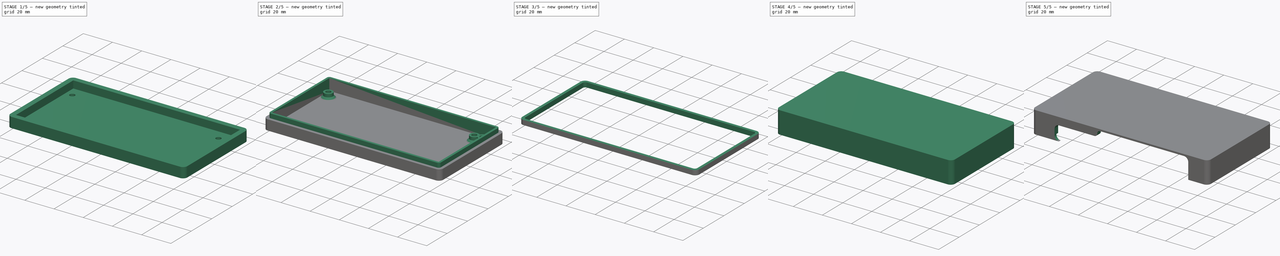
[diagram: build sequence overview — one tinted view per stage of 5, left to right]
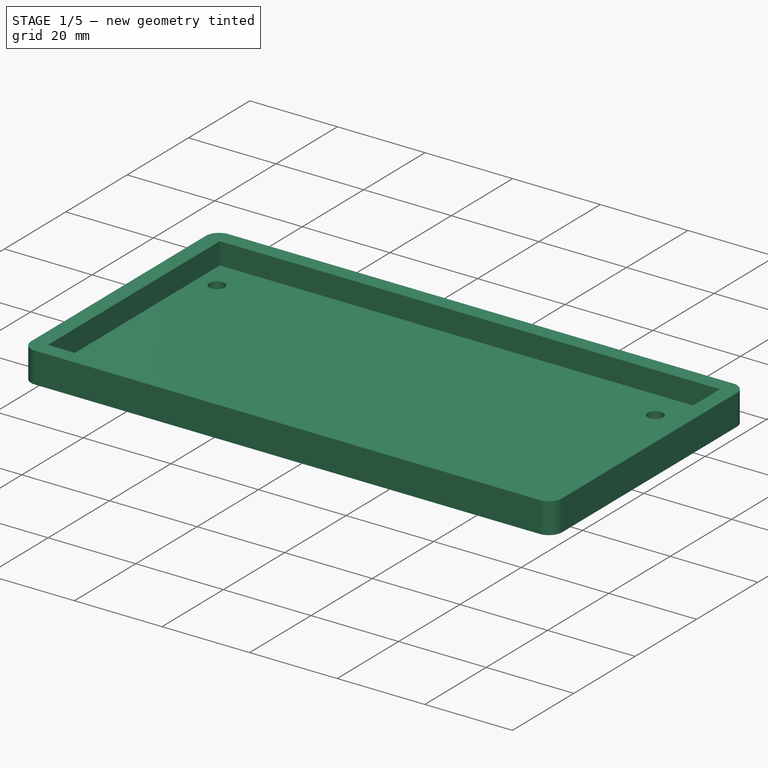
[diagram: stage 1 of 5 — iso view after this stage's code; geometry added in this stage tinted green]
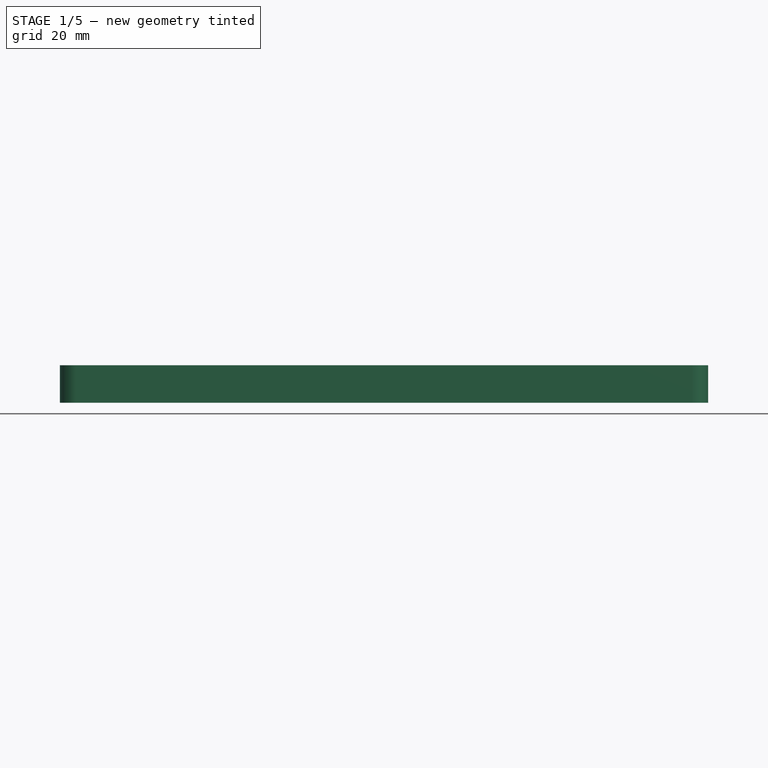
[diagram: stage 1 of 5 — front view after this stage's code; geometry added in this stage tinted green]
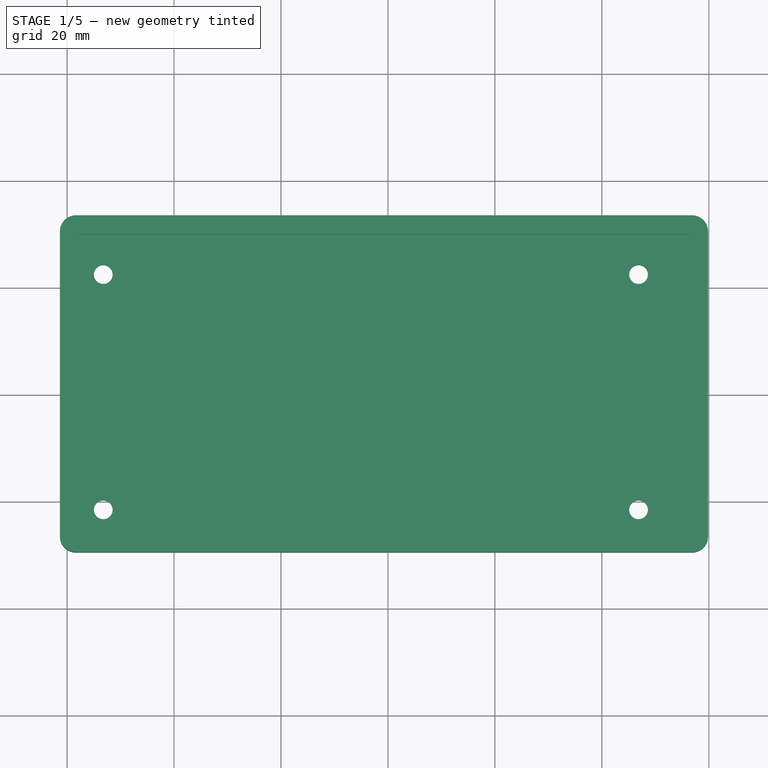
[diagram: stage 1 of 5 — top view after this stage's code; geometry added in this stage tinted green]
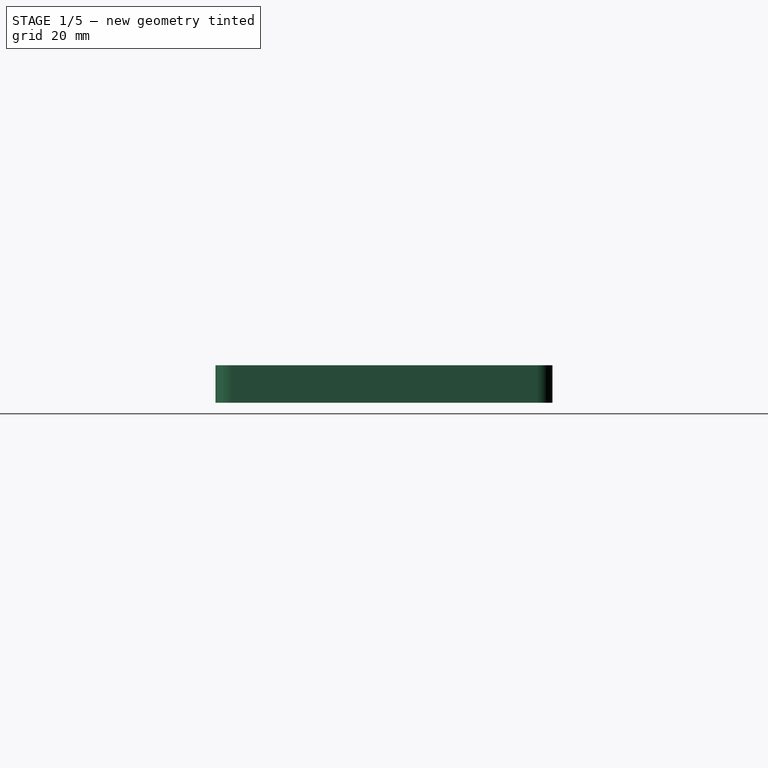
[diagram: stage 1 of 5 — right view after this stage's code; geometry added in this stage tinted green]
FCSTD DOCUMENT  (FreeCAD 1.0R39285 (Git))
Label: monitorBoard_enclosure
License: All rights reserved
LicenseURL: https://en.wikipedia.org/wiki/All_rights_reserved
objects: Part::Feature×42, Sketcher::SketchObject×16, PartDesign::Pad×11, App::Part×6, PartDesign::Pocket×5, PartDesign::Body×4, PartDesign::SubShapeBinder×4, Image::ImagePlane×2, PartDesign::FeatureBase×1, PartDesign::Chamfer×1
note: 135 computed .brp shape members not serialized (recipe doc carries the construction recipe); baked Part::Feature solids carry a one-line shape summary decoded from their .brp

FEATURE [Sketcher::SketchObject] Sketch
  ArcFitTolerance = 1e-06
  AttachmentSupport = -> [XY_Plane001]
  FullyConstrained = true
  MakeInternals = false
  MapMode = 5
  sketch-geometry (16):
    g0: LineSegment StartX=-55.84 StartY=-25.5 StartZ=0 EndX=54.36 EndY=-25.5 EndZ=0
    g1: LineSegment StartX=55.86 StartY=-24 StartZ=0 EndX=55.86 EndY=28 EndZ=0
    g2: LineSegment StartX=54.36 StartY=29.5 StartZ=0 EndX=-55.84 EndY=29.5 EndZ=0
    g3: LineSegment StartX=-57.34 StartY=28 StartZ=0 EndX=-57.34 EndY=-24 EndZ=0
    g4: ArcOfCircle CenterX=-55.84 CenterY=-24 CenterZ=0 NormalX=0 NormalY=0 NormalZ=1 AngleXU=0 Radius=1.5 StartAngle=3.14159 EndAngle=4.71239
    g5: ArcOfCircle CenterX=54.36 CenterY=-24 CenterZ=0 NormalX=0 NormalY=0 NormalZ=1 AngleXU=0 Radius=1.5 StartAngle=4.71239 EndAngle=6.28319
    g6: ArcOfCircle CenterX=54.36 CenterY=28 CenterZ=0 NormalX=0 NormalY=0 NormalZ=1 AngleXU=0 Radius=1.5 StartAngle=-9e-16 EndAngle=1.5708
    g7: ArcOfCircle CenterX=-55.84 CenterY=28 CenterZ=0 NormalX=0 NormalY=0 NormalZ=1 AngleXU=0 Radius=1.5 StartAngle=1.5708 EndAngle=3.14159
    g8: GeomPoint [constr] X=-57.34 Y=-25.5 Z=0
    g9: GeomPoint [constr] X=55.86 Y=29.5 Z=0
    g10: Circle CenterX=-53.24 CenterY=22.5 CenterZ=0 NormalX=0 NormalY=0 NormalZ=1 AngleXU=0 Radius=1.7
    g11: Circle CenterX=-53.24 CenterY=-21.5 CenterZ=0 NormalX=0 NormalY=0 NormalZ=1 AngleXU=0 Radius=1.7
    g12: Circle CenterX=51.86 CenterY=23.4 CenterZ=0 NormalX=0 NormalY=0 NormalZ=1 AngleXU=0 Radius=1.7
    g13: Circle CenterX=51.86 CenterY=-21.5 CenterZ=0 NormalX=0 NormalY=0 NormalZ=1 AngleXU=0 Radius=1.7
    g14: Circle CenterX=46.86 CenterY=22.5 CenterZ=0 NormalX=0 NormalY=0 NormalZ=1 AngleXU=0 Radius=1.7
    g15: Circle CenterX=46.86 CenterY=-21.5 CenterZ=0 NormalX=0 NormalY=0 NormalZ=1 AngleXU=0 Radius=1.7
  constraints (44):
    c: Tangent(g0,g4) = -1.5708
    c: Tangent(g0,g5) = -1.5708
    c: Tangent(g1,g5) = -1.5708
    c: Tangent(g1,g6) = -1.5708
    c: Tangent(g2,g6) = -1.5708
    c: Tangent(g2,g7) = -1.5708
    c: Tangent(g3,g7) = -1.5708
    c: Tangent(g3,g4) = -1.5708
    c: Horizontal(g0)
    c: Horizontal(g2)
    c: Vertical(g1)
    c: Vertical(g3)
    c: Equal(g4,g5)
    c: Equal(g5,g6)
    c: Equal(g6,g7)
    c: PointOnObject(g8,g0)
    c: PointOnObject(g8,g3)
    c: PointOnObject(g9,g1)
    c: PointOnObject(g9,g2)
    c: Distance(g1,g3) = 113.2
    c: Distance(g0,g2) = 55
    c: Radius(g5) = 1.5
    c: Distance(g-1,g0) = 25.5
    c: Distance(g-2,g3) = 57.34
    c: Vertical(g11,g10)
    c: Equal(g13,g12)
    c: Equal(g12,g10)
    c: Equal(g10,g11)
    c: Diameter(g10) = 3.4
    c: Distance(g11,g3) = 2.4
    c: Distance(g11,g0) = 2.3
    c: Distance(g10,g2) = 5.3
    c: Distance(g10,g11) = 40.6
    c: Horizontal(g11,g13)
    c: Distance(g13,g1) = 2.3
    c: Vertical(g13,g12)
    c: Distance(g12,g2) = 4.4
    c: Equal(g15,g13)
    c: Equal(g13,g14)
    c: Vertical(g14,g15)
    c: Horizontal(g10,g14)
    c: Horizontal(g15,g13)
    c: Distance(g15,g13) = 1.6
    c: Distance(g10,g14) = 96.7
FEATURE [Image::ImagePlane] boardPicTop
  Placement = pos=(0,0,0) rot=(0,0,-1;1.5708rad)
  XSize = 60.9601
  YSize = 110.702
FEATURE [Image::ImagePlane] boardPicBot
  Placement = pos=(-0.5,0.5,0) rot=(0,0,1;1.5708rad)
  XSize = 59.4361
  YSize = 113.284
FEATURE [PartDesign::Pad] Pad
  Direction = (0,0,1)
  Length = 1.3
  Length2 = 10
  Profile = -> Sketch
  ReferenceAxis = -> Sketch [N_Axis]
  Refine = true
  Reversed = true
  Suppressed = false
  Type = 0
FEATURE [PartDesign::Body] Body
  AllowCompound = false
  Group = -> [Sketch,Pad]
  Origin = -> Origin001
  Tip = -> Pad
FEATURE [Part::Feature] Part__Feature  label="HDMI_A_Molex_208658-1001_Horizontal"
  Placement = pos=(-31.5,-19,0) rot=(0,0,1;4.71239rad)
  shape: bbox 15 x 12.15 x 8.39 mm, 435 faces (baked)
FEATURE [Part::Feature] Part__Feature001  label="VGA-2H"
  Placement = pos=(0,0,0) rot=(0,1,0;3.14159rad)
  shape: bbox 22.3 x 12.5 x 30.8 mm, 146 faces (baked)
FEATURE [Part::Feature] Part__Feature002  label="VGA-1H"
  Placement = pos=(0,6.25,0) rot=(0,0,1;0rad)
  shape: bbox 8.9 x 12.55 x 30.8 mm, 53 faces (baked)
FEATURE [Part::Feature] Part__Feature003  label="VGA-3"
  Placement = pos=(-2.5,9,12.5) rot=(0,1,0;3.14159rad)
  shape: bbox 8 x 13.4 x 5.8 mm, 58 faces (baked)
FEATURE [Part::Feature] Part__Feature004  label="VGA-4H-1"
  Placement = pos=(-8.49,-3.18,4.83) rot=(0,-1,0;1.5708rad)
  shape: bbox 14.2 x 8.156 x 1.4 mm, 16 faces (baked)
FEATURE [Part::Feature] Part__Feature005  label="VGA-4H-2"
  Placement = pos=(-11.03,-4,3.685) rot=(0,-1,0;1.5708rad)
  shape: bbox 16.74 x 10.96 x 1.4 mm, 16 faces (baked)
FEATURE [Part::Feature] Part__Feature006  label="VGA-4H-3"
  Placement = pos=(-13.57,-3.18,4.83) rot=(0,-1,0;1.5708rad)
  shape: bbox 19.28 x 12.12 x 1.4 mm, 16 faces (baked)
FEATURE [Part::Feature] Part__Feature007  label="VGA-4H-004"
  Placement = pos=(-11.03,-4,1.395) rot=(0,-1,0;1.5708rad)
  shape: bbox 16.74 x 10.96 x 1.4 mm, 16 faces (baked)
FEATURE [Part::Feature] Part__Feature008  label="VGA-4H-005"
  Placement = pos=(-11.03,-4,-0.895) rot=(0,-1,0;1.5708rad)
  shape: bbox 16.74 x 10.96 x 1.4 mm, 16 faces (baked)
FEATURE [Part::Feature] Part__Feature009  label="VGA-4H-006"
  Placement = pos=(-11.03,-4,-3.185) rot=(0,-1,0;1.5708rad)
  shape: bbox 16.74 x 10.96 x 1.4 mm, 16 faces (baked)
FEATURE [Part::Feature] Part__Feature010  label="VGA-4H-007"
  Placement = pos=(-11.03,-4,-5.475) rot=(0,-1,0;1.5708rad)
  shape: bbox 16.74 x 10.96 x 1.4 mm, 16 faces (baked)
FEATURE [Part::Feature] Part__Feature011  label="VGA-4H-008"
  Placement = pos=(-13.57,-3.18,2.54) rot=(0,-1,0;1.5708rad)
  shape: bbox 19.28 x 12.12 x 1.4 mm, 16 faces (baked)
FEATURE [Part::Feature] Part__Feature012  label="VGA-4H-009"
  Placement = pos=(-13.57,-3.18,0.25) rot=(0,-1,0;1.5708rad)
  shape: bbox 19.28 x 12.12 x 1.4 mm, 16 faces (baked)
FEATURE [Part::Feature] Part__Feature013  label="VGA-4H-010"
  Placement = pos=(-13.57,-3.18,-2.04) rot=(0,-1,0;1.5708rad)
  shape: bbox 19.28 x 12.12 x 1.4 mm, 16 faces (baked)
FEATURE [Part::Feature] Part__Feature014  label="VGA-4H-011"
  Placement = pos=(-13.57,-3.18,-4.33) rot=(0,-1,0;1.5708rad)
  shape: bbox 19.28 x 12.12 x 1.4 mm, 16 faces (baked)
FEATURE [Part::Feature] Part__Feature015  label="VGA-4H-012"
  Placement = pos=(-8.49,-3.18,2.54) rot=(0,-1,0;1.5708rad)
  shape: bbox 14.2 x 8.156 x 1.4 mm, 16 faces (baked)
FEATURE [Part::Feature] Part__Feature016  label="VGA-4H-013"
  Placement = pos=(-8.49,-3.18,0.25) rot=(0,-1,0;1.5708rad)
  shape: bbox 14.2 x 8.156 x 1.4 mm, 16 faces (baked)
FEATURE [Part::Feature] Part__Feature017  label="VGA-4H-014"
  Placement = pos=(-8.49,-3.18,-2.04) rot=(0,-1,0;1.5708rad)
  shape: bbox 14.2 x 8.156 x 1.4 mm, 16 faces (baked)
FEATURE [Part::Feature] Part__Feature018  label="VGA-4H-015"
  Placement = pos=(-8.49,-3.18,-4.33) rot=(0,-1,0;1.5708rad)
  shape: bbox 14.2 x 8.156 x 1.4 mm, 16 faces (baked)
FEATURE [Part::Feature] Part__Feature019  label="VGA-5"
  Placement = pos=(-16,6.05,2.946e-13) rot=(0,0,-1;1.5708rad)
  shape: bbox 7 x 8.1 x 15.41 mm, 65 faces (baked)
FEATURE [Part::Feature] Part__Feature020  label="VGA-6"
  Placement = pos=(5.2,6.25,12.5) rot=(0,1,0;3.14159rad)
  shape: bbox 12.28 x 5.37 x 5.37 mm, 38 faces (baked)
FEATURE [Part::Feature] Part__Feature021  label="VGA-007"
  Placement = pos=(5.2,6.25,-12.5) rot=(0,1,0;3.14159rad)
  shape: bbox 12.28 x 5.37 x 5.37 mm, 38 faces (baked)
FEATURE [Part::Feature] Part__Feature022  label="VGA-008"
  Placement = pos=(-2.5,9,-12.5) rot=(0,1,0;3.14159rad)
  shape: bbox 8 x 13.4 x 5.8 mm, 58 faces (baked)
FEATURE [App::Part] CONECTOR_VGA_DB15  label="CONECTOR VGA-DB15"
  Group = -> [Part__Feature001,Part__Feature002,Part__Feature003,Part__Feature004,Part__Feature005,Part__Feature006,Part__Feature007,Part__Feature008,Part__Feature009,Part__Feature010,Part__Feature011,Part__Feature012,Part__Feature013,Part__Feature014,Part__Feature015,Part__Feature016,Part__Feature017,Part__Feature018,Part__Feature019,Part__Feature020,Part__Feature021,Part__Feature022]
  Origin = -> Origin003
  Placement = pos=(5.5,-25,-5.6e-15) rot=(-0.57735,0.57735,0.57735;4.18879rad)
FEATURE [Part::Feature] Part__Feature023  label="BarrelJack_Horizontal"
  shape: bbox 13.7 x 9 x 10.8 mm, 33 faces (baked)
FEATURE [Part::Feature] Part__Feature024  label="BarrelJack_Horizontal001"
  shape: bbox 14.2 x 5.284 x 12.54 mm, 12 faces (baked)
FEATURE [Part::Feature] Part__Feature025  label="BarrelJack_Horizontal002"
  shape: bbox 10.99 x 5 x 3.6 mm, 8 faces (baked)
FEATURE [Part::Feature] Part__Feature026  label="BarrelJack_Horizontal003"
  shape: bbox 2 x 6.72 x 7.2 mm, 15 faces (baked)
FEATURE [Part::Feature] Part__Feature027  label="BarrelJack_Horizontal004"
  shape: bbox 0.2 x 2 x 3.8 mm, 7 faces (baked)
FEATURE [App::Part] BarrelJack_Horizontal  label="BarrelJack_Horizontal005"
  Group = -> [Part__Feature023,Part__Feature024,Part__Feature025,Part__Feature026,Part__Feature027]
  Origin = -> Origin004
  Placement = pos=(38.5,-13,0) rot=(0,0,1;1.5708rad)
FEATURE [Part::Feature] Part__Feature028  label="body"
  Placement = pos=(0,-1.4,0) rot=(0,0,1;1.5708rad)
  shape: bbox 18.1 x 4.6 x 2 mm, 16 faces (baked)
FEATURE [Part::Feature] Part__Feature029  label="lock"
  Placement = pos=(0,-1.4,0) rot=(0,0,1;1.5708rad)
  shape: bbox 17.37 x 3 x 1.85 mm, 16 faces (baked)
FEATURE [Part::Feature] Part__Feature030  label="pins"
  Placement = pos=(0,-1.4,0) rot=(0,0,1;1.5708rad)
  shape: bbox 19.1 x 4 x 1.8 mm, 368 faces (baked)
FEATURE [App::Part] Hirose_FH12_xxS_0_5SH_Parametric_v0_1
  Group = -> [Part__Feature028,Part__Feature029,Part__Feature030]
  Origin = -> Origin005
  Placement = pos=(-25.25,23.75,0) rot=(0,0,1;3.14159rad)
FEATURE [Part::Feature] Part__Feature031  label="JST_B4B_PH_K"
  Placement = pos=(51,-15,0) rot=(0,0,1;1.5708rad)
  shape: bbox 4.55 x 9.9 x 9.4 mm, 149 faces (baked)
FEATURE [PartDesign::FeatureBase] Clone
  BaseFeature = -> Part__Feature031
  Placement = pos=(51,-15,0) rot=(0,0,1;1.5708rad)
  Suppressed = false
FEATURE [PartDesign::Body] Body001  label="JST_B4B_PH_K-2"
  AllowCompound = false
  Group = -> [Clone]
  Origin = -> Origin006
  Placement = pos=(11.5,-28.5,0) rot=(0,0,1;1.5708rad)
  Tip = -> Clone
FEATURE [Part::Feature] Part__Feature032  label="JST_B6B_PH_K"
  Placement = pos=(40.75,22.5,0) rot=(0,0,1;3.14159rad)
  shape: bbox 13.9 x 4.55 x 9.4 mm, 205 faces (baked)
FEATURE [Part::Feature] Part__Feature033  label="JST_B3B_PH_K"
  Placement = pos=(-48.25,16,0) rot=(0,0,1;4.71239rad)
  shape: bbox 4.55 x 7.9 x 9.4 mm, 121 faces (baked)
FEATURE [Part::Feature] Part__Feature034  label="JST_B10B_PH_K"
  Placement = pos=(-48.25,4.25,0) rot=(0,0,1;4.71239rad)
  shape: bbox 4.55 x 21.9 x 9.4 mm, 317 faces (baked)
FEATURE [Part::Feature] Part__Feature035  label="Same_Sky_SJ1-3535NG"
  shape: bbox 1.5 x 3.9 x 0.3 mm, 7 faces (baked)
FEATURE [Part::Feature] Part__Feature036  label="Same_Sky_SJ1-3535NG001"
  shape: bbox 5.001 x 5.001 x 4.001 mm, 13 faces (baked)
FEATURE [Part::Feature] Part__Feature037  label="Same_Sky_SJ1-3535NG002"
  shape: bbox 1.5 x 3.9 x 0.3 mm, 7 faces (baked)
FEATURE [Part::Feature] Part__Feature038  label="Same_Sky_SJ1-3535NG003"
  shape: bbox 1.5 x 3.9 x 0.3 mm, 7 faces (baked)
FEATURE [Part::Feature] Part__Feature039  label="Same_Sky_SJ1-3535NG004"
  shape: bbox 1.5 x 3.9 x 0.3 mm, 6 faces (baked)
FEATURE [Part::Feature] Part__Feature040  label="Same_Sky_SJ1-3535NG005"
  shape: bbox 1.5 x 3.9 x 0.3 mm, 6 faces (baked)
FEATURE [Part::Feature] Part__Feature041  label="Same_Sky_SJ1-3535NG006"
  shape: bbox 8.203 x 12.5 x 18 mm, 133 faces (baked)
FEATURE [App::Part] Same_Sky_SJ1_3535NG  label="Same_Sky_SJ1-3535NG007"
  Group = -> [Part__Feature035,Part__Feature036,Part__Feature037,Part__Feature038,Part__Feature039,Part__Feature040,Part__Feature041]
  Origin = -> Origin007
  Placement = pos=(29.25,-28.25,9.25) rot=(1,0,0;1.5708rad)
FEATURE [App::Part] Part  label="PCB"
  Group = -> [Body,CONECTOR_VGA_DB15,BarrelJack_Horizontal,Part__Feature,Hirose_FH12_xxS_0_5SH_Parametric_v0_1,Part__Feature031,Body001,Part__Feature032,Part__Feature033,Part__Feature034,Same_Sky_SJ1_3535NG]
  Origin = -> Origin
FEATURE [PartDesign::SubShapeBinder] Binder
  BindCopyOnChange = 0
  BindMode = 0
  ClaimChildren = false
  Context = -> Part001 [Body002.Binder.]
  Fuse = false
  MakeFace = true
  OffsetFill = false
  OffsetIntersection = false
  OffsetJoinType = 0
  OffsetOpenResult = false
  PartialLoad = false
  Refine = true
  Relative = true
  Support = -> [Part[Body.Pad.Face15]]
  _Version = 2
FEATURE [Sketcher::SketchObject] Sketch001
  ArcFitTolerance = 1e-06
  AttachmentSupport = -> [XY_Plane009]
  ExternalGeometry = -> [Binder]
  FullyConstrained = true
  MakeInternals = false
  MapMode = 5
  sketch-geometry (18):
    g0: LineSegment StartX=-61.34 StartY=30.5 StartZ=0 EndX=-61.34 EndY=-26.5 EndZ=0
    g1: LineSegment StartX=-58.34 StartY=-29.5 StartZ=0 EndX=56.86 EndY=-29.5 EndZ=0
    g2: LineSegment StartX=59.86 StartY=-26.5 StartZ=0 EndX=59.86 EndY=30.5 EndZ=0
    g3: LineSegment StartX=56.86 StartY=33.5 StartZ=0 EndX=-58.34 EndY=33.5 EndZ=0
    g4: ArcOfCircle CenterX=-58.34 CenterY=30.5 CenterZ=0 NormalX=0 NormalY=0 NormalZ=1 AngleXU=0 Radius=3 StartAngle=1.5708 EndAngle=3.14159
    g5: ArcOfCircle CenterX=-58.34 CenterY=-26.5 CenterZ=0 NormalX=0 NormalY=0 NormalZ=1 AngleXU=0 Radius=3 StartAngle=3.14159 EndAngle=4.71239
    g6: ArcOfCircle CenterX=56.86 CenterY=-26.5 CenterZ=0 NormalX=0 NormalY=0 NormalZ=1 AngleXU=0 Radius=3 StartAngle=4.71239 EndAngle=6.28319
    g7: ArcOfCircle CenterX=56.86 CenterY=30.5 CenterZ=0 NormalX=0 NormalY=0 NormalZ=1 AngleXU=0 Radius=3 StartAngle=3e-16 EndAngle=1.5708
    g8: GeomPoint [constr] X=-61.34 Y=33.5 Z=0
    g9: GeomPoint [constr] X=59.86 Y=-29.5 Z=0
    g10: LineSegment [constr] StartX=-55.84 StartY=29.5 StartZ=0 EndX=-55.84 EndY=33.5 EndZ=0
    g11: LineSegment [constr] StartX=-57.34 StartY=28 StartZ=0 EndX=-61.34 EndY=28 EndZ=0
    g12: LineSegment [constr] StartX=55.86 StartY=28 StartZ=0 EndX=59.86 EndY=28 EndZ=0
    g13: LineSegment [constr] StartX=54.36 StartY=-25.5 StartZ=0 EndX=54.36 EndY=-29.5 EndZ=0
    g14: Circle CenterX=-53.24 CenterY=22.5 CenterZ=0 NormalX=0 NormalY=0 NormalZ=1 AngleXU=0 Radius=1.75
    g15: Circle CenterX=-53.24 CenterY=-21.5 CenterZ=0 NormalX=0 NormalY=0 NormalZ=1 AngleXU=0 Radius=1.75
    g16: Circle CenterX=46.86 CenterY=22.5 CenterZ=0 NormalX=0 NormalY=0 NormalZ=1 AngleXU=0 Radius=1.75
    g17: Circle CenterX=46.86 CenterY=-21.5 CenterZ=0 NormalX=0 NormalY=0 NormalZ=1 AngleXU=0 Radius=1.75
  constraints (44):
    c: Tangent(g0,g4) = -1.5708
    c: Tangent(g0,g5) = -1.5708
    c: Tangent(g1,g5) = -1.5708
    c: Tangent(g1,g6) = -1.5708
    c: Tangent(g2,g6) = -1.5708
    c: Tangent(g2,g7) = -1.5708
    c: Tangent(g3,g7) = -1.5708
    c: Tangent(g3,g4) = -1.5708
    c: Vertical(g0)
    c: Vertical(g2)
    c: Horizontal(g1)
    c: Horizontal(g3)
    c: Equal(g4,g5)
    c: Equal(g5,g6)
    c: Equal(g6,g7)
    c: PointOnObject(g8,g0)
    c: PointOnObject(g8,g3)
    c: PointOnObject(g9,g1)
    c: PointOnObject(g9,g2)
    c: Radius(g5) = 3
    c: Coincident(g10,g-3)
    c: PointOnObject(g10,g3)
    c: Vertical(g10)
    c: Coincident(g11,g-4)
    c: PointOnObject(g11,g0)
    c: Horizontal(g11)
    c: Coincident(g12,g-6)
    c: PointOnObject(g12,g2)
    c: Horizontal(g12)
    c: Coincident(g13,g-5)
    c: PointOnObject(g13,g1)
    c: Vertical(g13)
    c: Equal(g13,g12)
    c: Equal(g12,g11)
    c: Equal(g11,g10)
    c: Distance(g10,g10) = 4
    c: Coincident(g14,g-7)
    c: Coincident(g15,g-8)
    c: Coincident(g16,g-10)
    c: Coincident(g17,g-9)
    c: Equal(g14,g15)
    c: Equal(g15,g17)
    c: Equal(g17,g16)
    c: Diameter(g14) = 3.5
FEATURE [PartDesign::Pad] Pad001
  Direction = (0,0,1)
  Length = 2
  Length2 = 10
  Profile = -> Sketch001
  ReferenceAxis = -> Sketch001 [N_Axis]
  Refine = true
  Reversed = true
  Suppressed = false
  Type = 0
FEATURE [Sketcher::SketchObject] Sketch002
  ArcFitTolerance = 1e-06
  AttachmentSupport = -> [Pad001]
  ExternalGeometry = -> [Binder,Pad001]
  FullyConstrained = true
  MakeInternals = false
  MapMode = 5
  sketch-geometry (18):
    g0: LineSegment StartX=-57.84 StartY=30 StartZ=0 EndX=-57.84 EndY=-26 EndZ=0
    g1: LineSegment StartX=-57.84 StartY=-26 StartZ=0 EndX=56.36 EndY=-26 EndZ=0
    g2: LineSegment StartX=56.36 StartY=-26 StartZ=0 EndX=56.36 EndY=30 EndZ=0
    g3: LineSegment StartX=56.36 StartY=30 StartZ=0 EndX=-57.84 EndY=30 EndZ=0
    g4: LineSegment [constr] StartX=-55.84 StartY=29.5 StartZ=0 EndX=-55.84 EndY=30 EndZ=0
    g5: LineSegment [constr] StartX=-57.34 StartY=28 StartZ=0 EndX=-57.84 EndY=28 EndZ=0
    g6: LineSegment [constr] StartX=55.86 StartY=-24 StartZ=0 EndX=56.36 EndY=-24 EndZ=0
    g7: LineSegment [constr] StartX=54.36 StartY=-25.5 StartZ=0 EndX=54.36 EndY=-26 EndZ=0
    g8: LineSegment StartX=-61.34 StartY=30.5 StartZ=0 EndX=-61.34 EndY=-26.5 EndZ=0
    g9: LineSegment StartX=-58.34 StartY=-29.5 StartZ=0 EndX=56.86 EndY=-29.5 EndZ=0
    g10: LineSegment StartX=59.86 StartY=-26.5 StartZ=0 EndX=59.86 EndY=30.5 EndZ=0
    g11: LineSegment StartX=56.86 StartY=33.5 StartZ=0 EndX=-58.34 EndY=33.5 EndZ=0
    g12: ArcOfCircle CenterX=-58.34 CenterY=30.5 CenterZ=0 NormalX=0 NormalY=0 NormalZ=1 AngleXU=0 Radius=3 StartAngle=1.5708 EndAngle=3.14159
    g13: ArcOfCircle CenterX=-58.34 CenterY=-26.5 CenterZ=0 NormalX=0 NormalY=0 NormalZ=1 AngleXU=0 Radius=3 StartAngle=3.14159 EndAngle=4.71239
    g14: ArcOfCircle CenterX=56.86 CenterY=-26.5 CenterZ=0 NormalX=0 NormalY=0 NormalZ=1 AngleXU=0 Radius=3 StartAngle=4.71239 EndAngle=6.28319
    g15: ArcOfCircle CenterX=56.86 CenterY=30.5 CenterZ=0 NormalX=0 NormalY=0 NormalZ=1 AngleXU=0 Radius=3 StartAngle=0 EndAngle=1.5708
    g16: GeomPoint [constr] X=-61.34 Y=33.5 Z=0
    g17: GeomPoint [constr] X=59.86 Y=-29.5 Z=0
  constraints (45):
    c: Coincident(g0,g1)
    c: Coincident(g1,g2)
    c: Coincident(g2,g3)
    c: Coincident(g3,g0)
    c: Vertical(g0)
    c: Vertical(g2)
    c: Horizontal(g1)
    c: Horizontal(g3)
    c: Coincident(g4,g-3)
    c: PointOnObject(g4,g3)
    c: Vertical(g4)
    c: Coincident(g5,g-5)
    c: PointOnObject(g5,g0)
    c: Horizontal(g5)
    c: Coincident(g6,g-6)
    c: PointOnObject(g6,g2)
    c: Horizontal(g6)
    c: Coincident(g7,g-4)
    c: PointOnObject(g7,g1)
    c: Vertical(g7)
    c: Equal(g7,g6)
    c: Equal(g6,g5)
    c: Equal(g5,g4)
    c: Distance(g4,g4) = 0.5
    c: Tangent(g8,g12) = -1.5708
    c: Tangent(g8,g13) = -1.5708
    c: Tangent(g9,g13) = -1.5708
    c: Tangent(g9,g14) = -1.5708
    c: Tangent(g10,g14) = -1.5708
    c: Tangent(g10,g15) = -1.5708
    c: Tangent(g11,g15) = -1.5708
    c: Tangent(g11,g12) = -1.5708
    c: Vertical(g8)
    c: Vertical(g10)
    c: Horizontal(g11)
    c: Equal(g12,g13)
    c: Equal(g13,g14)
    c: Equal(g14,g15)
    c: PointOnObject(g16,g8)
    c: PointOnObject(g16,g11)
    c: PointOnObject(g17,g9)
    c: PointOnObject(g17,g10)
    c: Coincident(g9,g-11)
    c: Coincident(g-11,g10)
    c: Coincident(g11,g-7)
FEATURE [PartDesign::Pad] Pad002
  BaseFeature = -> Pad001
  Direction = (0,0,1)
  Length = 5
  Length2 = 10
  Profile = -> Sketch002
  ReferenceAxis = -> Sketch002 [N_Axis]
  Refine = true
  Suppressed = false
  Type = 0
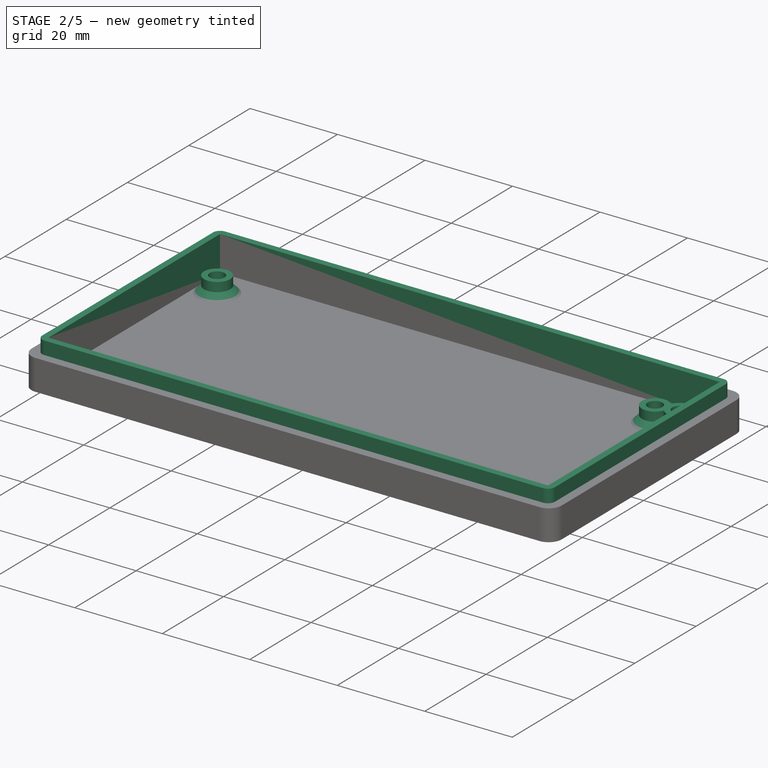
[diagram: stage 2 of 5 — iso view after this stage's code; geometry added in this stage tinted green]
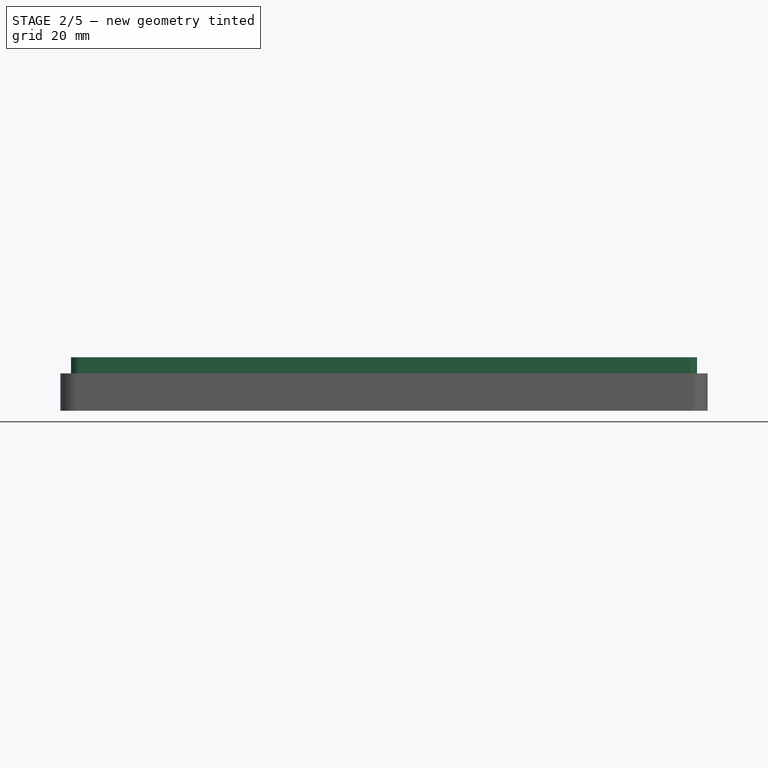
[diagram: stage 2 of 5 — front view after this stage's code; geometry added in this stage tinted green]
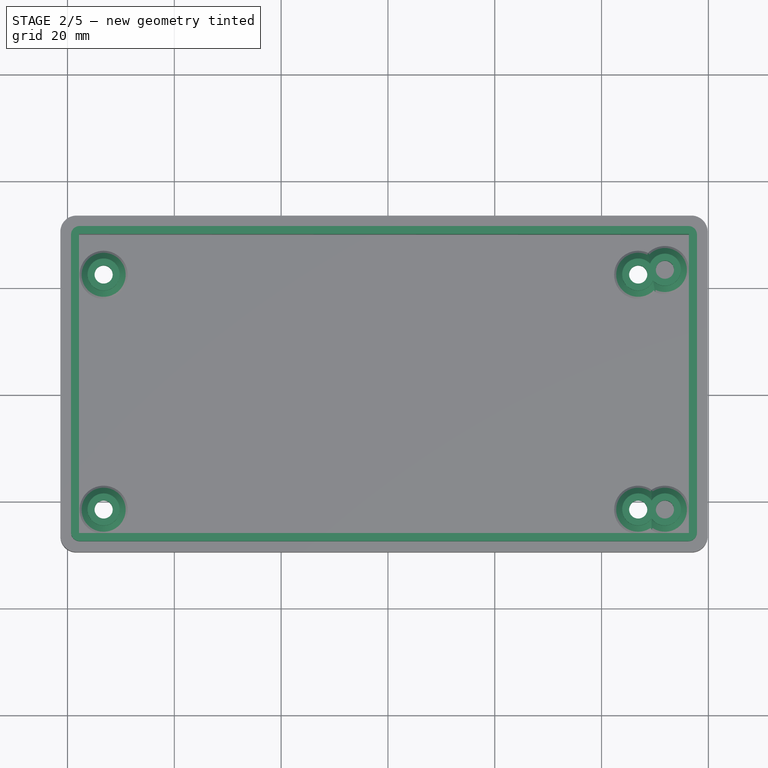
[diagram: stage 2 of 5 — top view after this stage's code; geometry added in this stage tinted green]
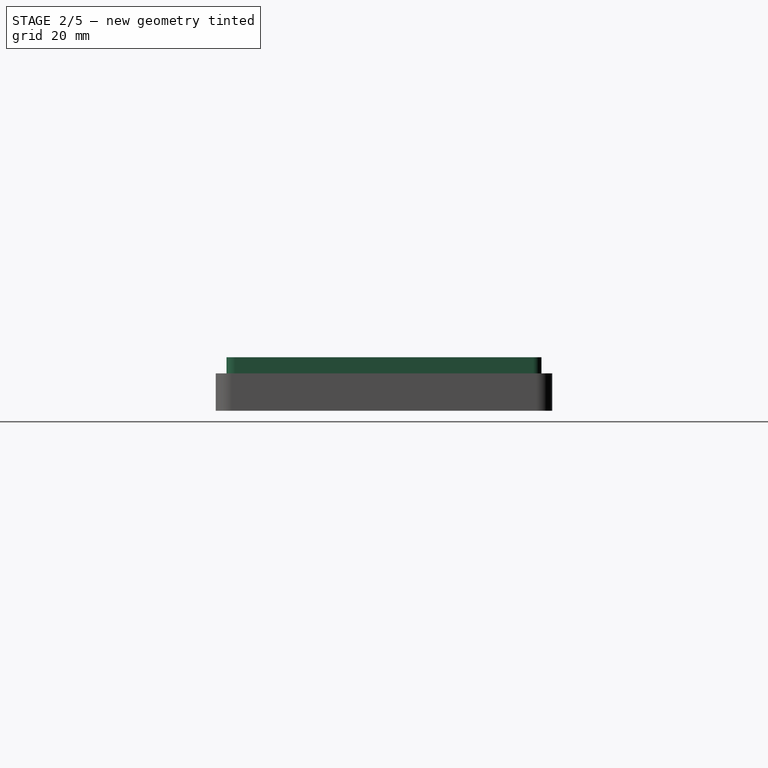
[diagram: stage 2 of 5 — right view after this stage's code; geometry added in this stage tinted green]
FEATURE [Sketcher::SketchObject] Sketch003
  ArcFitTolerance = 1e-06
  AttachmentSupport = -> [Pad002]
  ExternalGeometry = -> [Binder]
  FullyConstrained = false
  MakeInternals = false
  MapMode = 5
  sketch-geometry (12):
    g0: Circle CenterX=-53.24 CenterY=22.5 CenterZ=0 NormalX=0 NormalY=0 NormalZ=1 AngleXU=0 Radius=3
    g1: Circle CenterX=-53.24 CenterY=-21.5 CenterZ=0 NormalX=0 NormalY=0 NormalZ=1 AngleXU=0 Radius=3
    g2: ArcOfCircle CenterX=51.86 CenterY=23.4 CenterZ=0 NormalX=0 NormalY=0 NormalZ=1 AngleXU=0 Radius=3 StartAngle=3.88068 EndAngle=9.04188
    g3: ArcOfCircle CenterX=46.86 CenterY=22.5 CenterZ=0 NormalX=0 NormalY=0 NormalZ=1 AngleXU=0 Radius=3 StartAngle=0.739089 EndAngle=5.90028
    g4: ArcOfCircle CenterX=46.86 CenterY=-21.5 CenterZ=0 NormalX=0 NormalY=0 NormalZ=1 AngleXU=0 Radius=3 StartAngle=0.585686 EndAngle=5.6975
    g5: ArcOfCircle CenterX=51.86 CenterY=-21.5 CenterZ=0 NormalX=0 NormalY=0 NormalZ=1 AngleXU=0 Radius=3 StartAngle=3.72728 EndAngle=8.83909
    g6: Circle CenterX=-53.24 CenterY=22.5 CenterZ=0 NormalX=0 NormalY=0 NormalZ=1 AngleXU=0 Radius=1.7
    g7: Circle CenterX=-53.24 CenterY=-21.5 CenterZ=0 NormalX=0 NormalY=0 NormalZ=1 AngleXU=0 Radius=1.7
    g8: Circle CenterX=46.86 CenterY=-21.5 CenterZ=0 NormalX=0 NormalY=0 NormalZ=1 AngleXU=0 Radius=1.7
    g9: Circle CenterX=51.86 CenterY=-21.5 CenterZ=0 NormalX=0 NormalY=0 NormalZ=1 AngleXU=0 Radius=1.7
    g10: Circle CenterX=46.86 CenterY=22.5 CenterZ=0 NormalX=0 NormalY=0 NormalZ=1 AngleXU=0 Radius=1.7
    g11: Circle CenterX=51.86 CenterY=23.4 CenterZ=0 NormalX=0 NormalY=0 NormalZ=1 AngleXU=0 Radius=1.7
  constraints (22):
    c: Coincident(g0,g-3)
    c: Coincident(g1,g-4)
    c: Coincident(g2,g-6)
    c: Coincident(g3,g-5)
    c: Coincident(g4,g-7)
    c: Coincident(g5,g-8)
    c: Equal(g5,g4)
    c: Equal(g4,g3)
    c: Equal(g3,g2)
    c: Equal(g2,g0)
    c: Equal(g0,g1)
    c: Diameter(g0) = 6
    c: Coincident(g3,g2)
    c: Coincident(g3,g2)
    c: Coincident(g5,g4)
    c: Coincident(g5,g4)
    c: Coincident(g6,g0)
    c: Coincident(g7,g1)
    c: Coincident(g8,g4)
    c: Coincident(g9,g5)
    c: Coincident(g10,g3)
    c: Coincident(g11,g2)
FEATURE [PartDesign::Pad] Pad003
  BaseFeature = -> Pad002
  Direction = (0,0,1)
  Length = 3.6
  Length2 = 10
  Profile = -> Sketch003
  ReferenceAxis = -> Sketch003 [N_Axis]
  Refine = true
  Suppressed = false
  Type = 0
FEATURE [PartDesign::Chamfer] Chamfer
  Angle = 45
  Base = -> Pad003 [Edge40,Edge38,Edge37,Edge39,Edge44,Edge41,Edge43,Edge42,Edge46,Edge45]
  BaseFeature = -> Pad003
  ChamferType = 0
  FlipDirection = false
  Refine = true
  Size = 1.5
  Size2 = 1
  SupportTransform = false
  Suppressed = false
  UseAllEdges = false
FEATURE [Sketcher::SketchObject] Sketch004
  ArcFitTolerance = 1e-06
  AttachmentSupport = -> [Chamfer]
  ExternalGeometry = -> [Chamfer]
  FullyConstrained = true
  MakeInternals = false
  MapMode = 5
  Placement = pos=(0,0,5) rot=(0,0,1;0rad)
  sketch-geometry (18):
    g0: LineSegment StartX=-59.34 StartY=29.9 StartZ=0 EndX=-59.34 EndY=-25.9 EndZ=0
    g1: LineSegment StartX=-57.74 StartY=-27.5 StartZ=0 EndX=56.26 EndY=-27.5 EndZ=0
    g2: LineSegment StartX=57.86 StartY=-25.9 StartZ=0 EndX=57.86 EndY=29.9 EndZ=0
    g3: LineSegment StartX=56.26 StartY=31.5 StartZ=0 EndX=-57.74 EndY=31.5 EndZ=0
    g4: ArcOfCircle CenterX=-57.74 CenterY=29.9 CenterZ=0 NormalX=0 NormalY=0 NormalZ=1 AngleXU=0 Radius=1.6 StartAngle=1.5708 EndAngle=3.14159
    g5: ArcOfCircle CenterX=-57.74 CenterY=-25.9 CenterZ=0 NormalX=0 NormalY=0 NormalZ=1 AngleXU=0 Radius=1.6 StartAngle=3.14159 EndAngle=4.71239
    g6: ArcOfCircle CenterX=56.26 CenterY=-25.9 CenterZ=0 NormalX=0 NormalY=0 NormalZ=1 AngleXU=0 Radius=1.6 StartAngle=4.71239 EndAngle=6.28319
    g7: ArcOfCircle CenterX=56.26 CenterY=29.9 CenterZ=0 NormalX=0 NormalY=0 NormalZ=1 AngleXU=0 Radius=1.6 StartAngle=1e-16 EndAngle=1.5708
    g8: GeomPoint [constr] X=-59.34 Y=31.5 Z=0
    g9: GeomPoint [constr] X=57.86 Y=-27.5 Z=0
    g10: LineSegment StartX=-57.84 StartY=30 StartZ=0 EndX=-57.84 EndY=-26 EndZ=0
    g11: LineSegment StartX=-57.84 StartY=-26 StartZ=0 EndX=56.36 EndY=-26 EndZ=0
    g12: LineSegment StartX=56.36 StartY=-26 StartZ=0 EndX=56.36 EndY=30 EndZ=0
    g13: LineSegment StartX=56.36 StartY=30 StartZ=0 EndX=-57.84 EndY=30 EndZ=0
    g14: LineSegment [constr] StartX=-57.74 StartY=31.5 StartZ=0 EndX=-57.74 EndY=30 EndZ=0
    g15: LineSegment [constr] StartX=-59.34 StartY=29.9 StartZ=0 EndX=-57.84 EndY=29.9 EndZ=0
    g16: LineSegment [constr] StartX=57.86 StartY=-25.9 StartZ=0 EndX=56.36 EndY=-25.9 EndZ=0
    g17: LineSegment [constr] StartX=56.26 StartY=-27.5 StartZ=0 EndX=56.26 EndY=-26 EndZ=0
  constraints (46):
    c: Tangent(g0,g4) = -1.5708
    c: Tangent(g0,g5) = -1.5708
    c: Tangent(g1,g5) = -1.5708
    c: Tangent(g1,g6) = -1.5708
    c: Tangent(g2,g6) = -1.5708
    c: Tangent(g2,g7) = -1.5708
    c: Tangent(g3,g7) = -1.5708
    c: Tangent(g3,g4) = -1.5708
    c: Vertical(g0)
    c: Vertical(g2)
    c: Horizontal(g1)
    c: Horizontal(g3)
    c: Equal(g4,g5)
    c: Equal(g5,g6)
    c: Equal(g6,g7)
    c: PointOnObject(g8,g0)
    c: PointOnObject(g8,g3)
    c: PointOnObject(g9,g1)
    c: PointOnObject(g9,g2)
    c: Coincident(g10,g11)
    c: Coincident(g11,g12)
    c: Coincident(g12,g13)
    c: Coincident(g13,g10)
    c: Vertical(g10)
    c: Vertical(g12)
    c: Horizontal(g11)
    c: Horizontal(g13)
    c: Coincident(g10,g-9)
    c: Coincident(g11,g-10)
    c: Coincident(g14,g3)
    c: PointOnObject(g14,g13)
    c: Vertical(g14)
    c: Coincident(g15,g0)
    c: PointOnObject(g15,g10)
    c: Horizontal(g15)
    c: Coincident(g16,g2)
    c: PointOnObject(g16,g12)
    c: Horizontal(g16)
    c: Coincident(g17,g1)
    c: PointOnObject(g17,g11)
    c: Vertical(g17)
    c: Equal(g17,g16)
    c: Equal(g16,g15)
    c: Equal(g15,g14)
    c: DistanceY(g14,g14) = 1.5
    c: Radius(g4) = 1.6
FEATURE [PartDesign::Pad] Pad004
  BaseFeature = -> Chamfer
  Direction = (0,0,1)
  Length = 3
  Length2 = 10
  Profile = -> Sketch004
  ReferenceAxis = -> Sketch004 [N_Axis]
  Refine = true
  Suppressed = false
  Type = 0
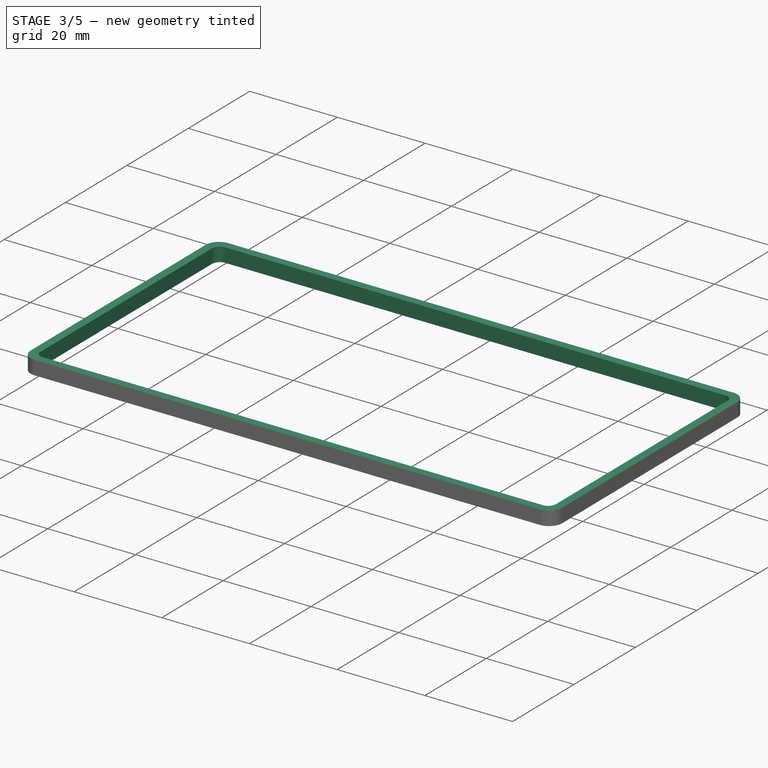
[diagram: stage 3 of 5 — iso view after this stage's code; geometry added in this stage tinted green]
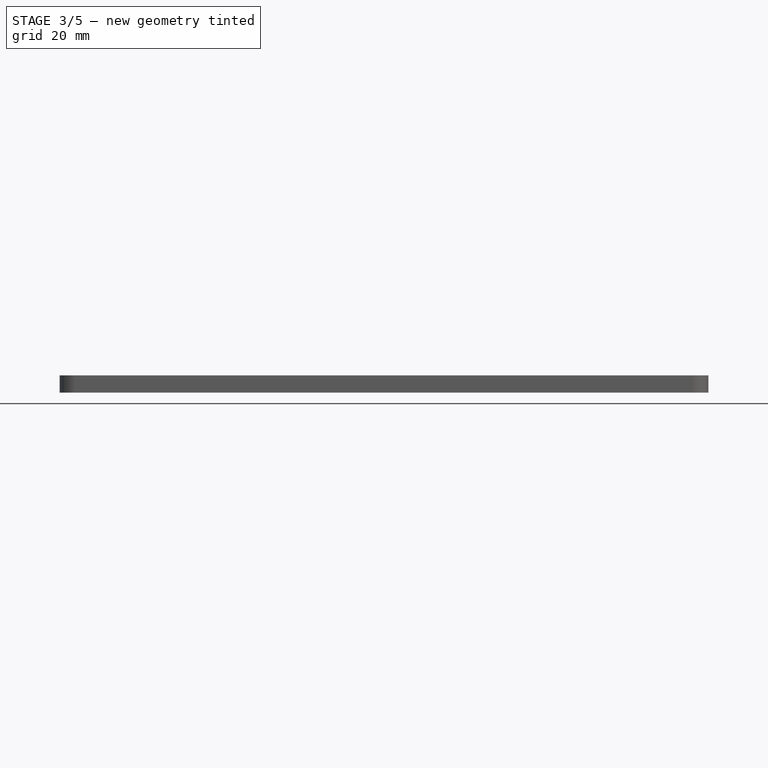
[diagram: stage 3 of 5 — front view after this stage's code; geometry added in this stage tinted green]
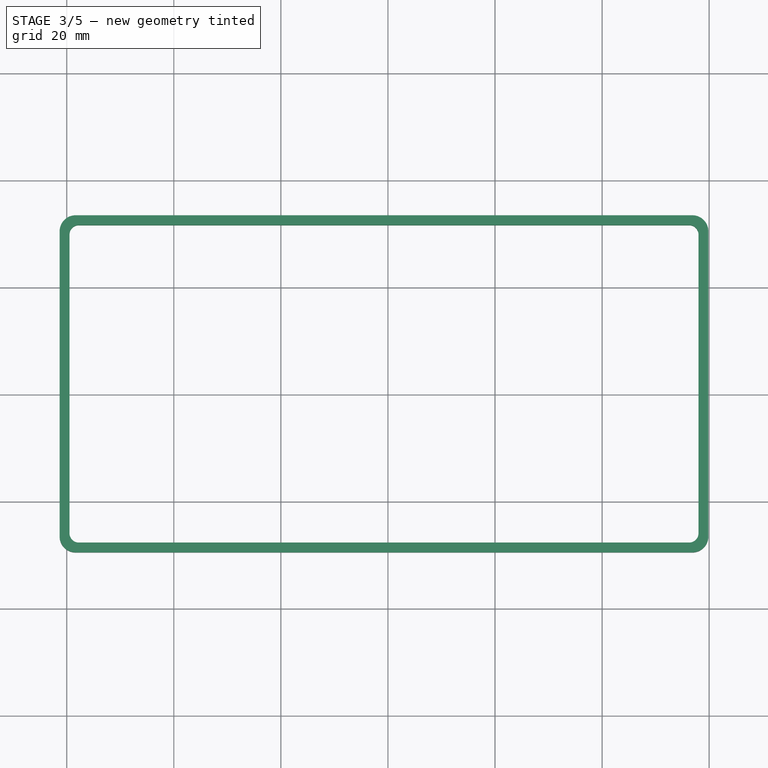
[diagram: stage 3 of 5 — top view after this stage's code; geometry added in this stage tinted green]
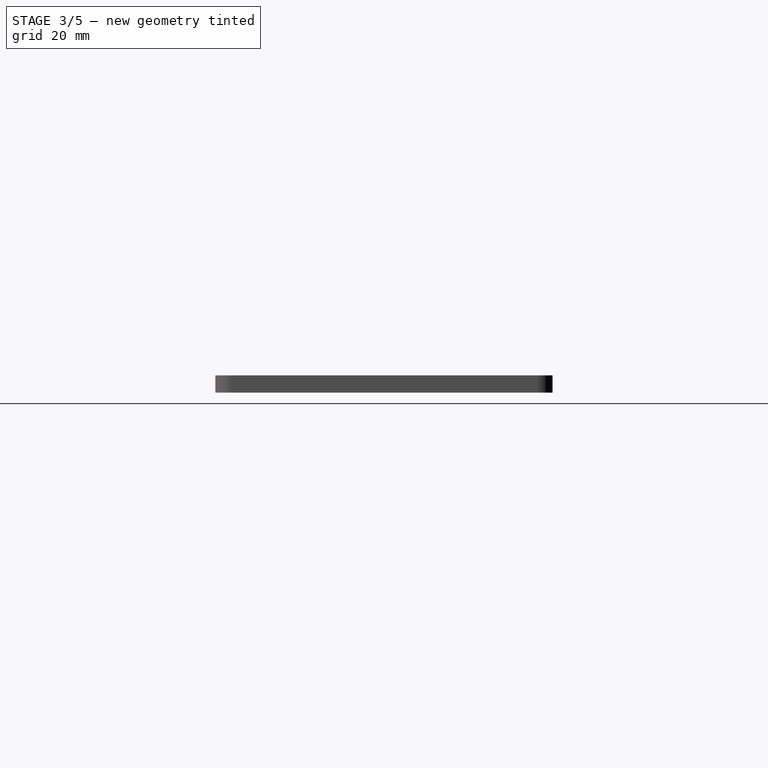
[diagram: stage 3 of 5 — right view after this stage's code; geometry added in this stage tinted green]
FEATURE [Sketcher::SketchObject] Sketch005
  ArcFitTolerance = 1e-06
  AttachmentSupport = -> [Pad004]
  ExternalGeometry = -> [Pad004]
  FullyConstrained = true
  MakeInternals = false
  MapMode = 5
  Placement = pos=(0,-29.5,0) rot=(1,0,0;1.5708rad)
  sketch-geometry (8):
    g0: ArcOfCircle CenterX=-42.74 CenterY=8 CenterZ=0 NormalX=0 NormalY=0 NormalZ=1 AngleXU=0 Radius=3 StartAngle=3.14159 EndAngle=4.71239
    g1: LineSegment StartX=46.26 StartY=5 StartZ=0 EndX=46.26 EndY=8 EndZ=0
    g2: LineSegment StartX=-45.74 StartY=8 StartZ=0 EndX=46.26 EndY=8 EndZ=0
    g3: LineSegment StartX=46.26 StartY=5 StartZ=0 EndX=27.66 EndY=5 EndZ=0
    g4: LineSegment StartX=-42.74 StartY=5 StartZ=0 EndX=-16.34 EndY=5 EndZ=0
    g5: ArcOfCircle CenterX=-14.34 CenterY=5 CenterZ=0 NormalX=0 NormalY=0 NormalZ=1 AngleXU=0 Radius=2 StartAngle=3.14159 EndAngle=4.71239
    g6: ArcOfCircle CenterX=25.66 CenterY=5 CenterZ=0 NormalX=0 NormalY=0 NormalZ=1 AngleXU=0 Radius=2 StartAngle=4.71239 EndAngle=6.28319
    g7: LineSegment StartX=-14.34 StartY=3 StartZ=0 EndX=25.66 EndY=3 EndZ=0
  constraints (24):
    c: PointOnObject(g0,g-4)
    c: PointOnObject(g0,g-4)
    c: Tangent(g0,g-3) = -1.5708
    c: PointOnObject(g1,g-3)
    c: PointOnObject(g1,g-4)
    c: Vertical(g1)
    c: Coincident(g2,g0)
    c: Coincident(g2,g1)
    c: DistanceX(g-4,g0) = 15
    c: DistanceX(g1,g-4) = 10
    c: Coincident(g3,g1)
    c: PointOnObject(g3,g-3)
    c: Coincident(g4,g0)
    c: PointOnObject(g4,g-3)
    c: PointOnObject(g5,g-3)
    c: Coincident(g5,g4)
    c: PointOnObject(g6,g-3)
    c: Coincident(g6,g3)
    c: Horizontal(g7)
    c: Tangent(g7,g5) = -1.5708
    c: Tangent(g7,g6) = -1.5708
    c: DistanceX(g5,g6) = 40
    c: DistanceX(g-3,g5) = 44
    c: Distance(g6,g-3) = 2
FEATURE [PartDesign::Pocket] Pocket
  BaseFeature = -> Pad004
  Direction = (0,1,-2e-16)
  Length = 5
  Length2 = 5
  Profile = -> Sketch005
  ReferenceAxis = -> Sketch005 [N_Axis]
  Refine = true
  Suppressed = false
  Type = 0
FEATURE [Sketcher::SketchObject] Sketch006
  ArcFitTolerance = 1e-06
  AttachmentSupport = -> [Pocket]
  ExternalGeometry = -> [Pocket]
  FullyConstrained = true
  MakeInternals = false
  MapMode = 5
  Placement = pos=(0,33.5,0) rot=(0,0.707107,0.707107;3.14159rad)
  sketch-geometry (4):
    g0: LineSegment StartX=13.74 StartY=5 StartZ=0 EndX=35.74 EndY=5 EndZ=0
    g1: ArcOfCircle CenterX=13.74 CenterY=8 CenterZ=0 NormalX=0 NormalY=0 NormalZ=1 AngleXU=0 Radius=3 StartAngle=3.14159 EndAngle=4.71239
    g2: ArcOfCircle CenterX=35.74 CenterY=8 CenterZ=0 NormalX=0 NormalY=0 NormalZ=1 AngleXU=0 Radius=3 StartAngle=4.71239 EndAngle=6.28319
    g3: LineSegment StartX=10.74 StartY=8 StartZ=0 EndX=38.74 EndY=8 EndZ=0
  constraints (13):
    c: Horizontal(g0)
    c: PointOnObject(g2,g-3)
    c: PointOnObject(g0,g-4)
    c: PointOnObject(g1,g-3)
    c: PointOnObject(g2,g-3)
    c: Coincident(g3,g1)
    c: Coincident(g3,g2)
    c: Tangent(g2,g0) = -1.5708
    c: DistanceX(g0,g0) = 22
    c: PointOnObject(g1,g3)
    c: Tangent(g0,g1) = -1.5708
    c: DistanceX(g2,g-3) = 19
    c: DistanceX(g1,g2) = 28
FEATURE [PartDesign::Pocket] Pocket001
  BaseFeature = -> Pocket
  Direction = (0,-1,2e-16)
  Length = 5
  Length2 = 5
  Profile = -> Sketch006
  ReferenceAxis = -> Sketch006 [N_Axis]
  Refine = true
  Suppressed = false
  Type = 0
FEATURE [Sketcher::SketchObject] Sketch007
  ArcFitTolerance = 1e-06
  AttachmentSupport = -> [Pocket001]
  ExternalGeometry = -> [Pocket001]
  FullyConstrained = true
  MakeInternals = false
  MapMode = 5
  Placement = pos=(-59.34,0,0) rot=(0.57735,-0.57735,-0.57735;2.0944rad)
  sketch-geometry (4):
    g0: LineSegment StartX=-2.6 StartY=8 StartZ=0 EndX=-2.6 EndY=5 EndZ=0
    g1: LineSegment StartX=-2.6 StartY=5 StartZ=0 EndX=12.4 EndY=5 EndZ=0
    g2: LineSegment StartX=12.4 StartY=5 StartZ=0 EndX=12.4 EndY=8 EndZ=0
    g3: LineSegment StartX=12.4 StartY=8 StartZ=0 EndX=-2.6 EndY=8 EndZ=0
  constraints (12):
    c: Coincident(g0,g1)
    c: Coincident(g1,g2)
    c: Coincident(g2,g3)
    c: Coincident(g3,g0)
    c: Vertical(g0)
    c: Vertical(g2)
    c: Horizontal(g1)
    c: Horizontal(g3)
    c: PointOnObject(g0,g-3)
    c: DistanceX(g3,g3) = 15
    c: PointOnObject(g1,g-4)
    c: Distance(g-3,g2) = 13.5
FEATURE [PartDesign::Pad] Pad005
  BaseFeature = -> Pocket001
  Direction = (-1,0,0)
  Length = 10
  Length2 = 10
  Profile = -> Sketch007
  ReferenceAxis = -> Sketch007 [N_Axis]
  Refine = true
  Suppressed = false
  Type = 3
  UpToFace = -> Pocket001 [Face39]
FEATURE [PartDesign::Body] Body002  label="BotLid"
  AllowCompound = false
  Group = -> [Sketch001,Binder,Pad001,Sketch002,Pad002,Sketch003,Pad003,Chamfer,Sketch004,Pad004,Sketch005,Pocket,Sketch006,Pocket001,Sketch007,Pad005]
  Origin = -> Origin009
  Placement = pos=(0,0,-5) rot=(0,0,1;0rad)
  Tip = -> Pad005
FEATURE [PartDesign::SubShapeBinder] Binder001
  BindCopyOnChange = 0
  BindMode = 0
  ClaimChildren = false
  Context = -> Part001 [Body003.Binder001.]
  Fuse = false
  MakeFace = true
  OffsetFill = false
  OffsetIntersection = false
  OffsetJoinType = 0
  OffsetOpenResult = false
  PartialLoad = false
  Refine = true
  Relative = true
  Support = -> [Body002[Pad005.Face4,Pad005.Face30]]
  _Version = 2
FEATURE [Sketcher::SketchObject] Sketch008
  ArcFitTolerance = 1e-06
  AttachmentSupport = -> [XY_Plane010]
  ExternalGeometry = -> [Binder001]
  FullyConstrained = true
  MakeInternals = false
  MapMode = 5
  sketch-geometry (20):
    g0: LineSegment StartX=56.86 StartY=33.5 StartZ=0 EndX=-58.34 EndY=33.5 EndZ=0
    g1: LineSegment StartX=-61.34 StartY=30.5 StartZ=0 EndX=-61.34 EndY=-26.5 EndZ=0
    g2: LineSegment StartX=-58.34 StartY=-29.5 StartZ=0 EndX=56.86 EndY=-29.5 EndZ=0
    g3: LineSegment StartX=59.86 StartY=-26.5 StartZ=0 EndX=59.86 EndY=30.5 EndZ=0
    g4: ArcOfCircle CenterX=56.86 CenterY=30.5 CenterZ=0 NormalX=0 NormalY=0 NormalZ=1 AngleXU=0 Radius=3 StartAngle=0 EndAngle=1.5708
    g5: ArcOfCircle CenterX=-58.34 CenterY=30.5 CenterZ=0 NormalX=0 NormalY=0 NormalZ=1 AngleXU=0 Radius=3 StartAngle=1.5708 EndAngle=3.14159
    g6: ArcOfCircle CenterX=-58.34 CenterY=-26.5 CenterZ=0 NormalX=0 NormalY=0 NormalZ=1 AngleXU=0 Radius=3 StartAngle=3.14159 EndAngle=4.71239
    g7: ArcOfCircle CenterX=56.86 CenterY=-26.5 CenterZ=0 NormalX=0 NormalY=0 NormalZ=1 AngleXU=0 Radius=3 StartAngle=4.71239 EndAngle=6.28319
    g8: GeomPoint [constr] X=59.86 Y=33.5 Z=0
    g9: GeomPoint [constr] X=-61.34 Y=-29.5 Z=0
    g10: LineSegment StartX=56.26 StartY=31.65 StartZ=0 EndX=-57.74 EndY=31.65 EndZ=0
    g11: LineSegment StartX=-59.49 StartY=29.9 StartZ=0 EndX=-59.49 EndY=-25.9 EndZ=0
    g12: LineSegment StartX=-57.74 StartY=-27.65 StartZ=0 EndX=56.26 EndY=-27.65 EndZ=0
    g13: LineSegment StartX=58.01 StartY=-25.9 StartZ=0 EndX=58.01 EndY=29.9 EndZ=0
    g14: ArcOfCircle CenterX=56.26 CenterY=29.9 CenterZ=0 NormalX=0 NormalY=0 NormalZ=1 AngleXU=0 Radius=1.75 StartAngle=5e-16 EndAngle=1.5708
    g15: ArcOfCircle CenterX=-57.74 CenterY=29.9 CenterZ=0 NormalX=0 NormalY=0 NormalZ=1 AngleXU=0 Radius=1.75 StartAngle=1.5708 EndAngle=3.14159
    g16: ArcOfCircle CenterX=-57.74 CenterY=-25.9 CenterZ=0 NormalX=0 NormalY=0 NormalZ=1 AngleXU=0 Radius=1.75 StartAngle=3.14159 EndAngle=4.71239
    g17: ArcOfCircle CenterX=56.26 CenterY=-25.9 CenterZ=0 NormalX=0 NormalY=0 NormalZ=1 AngleXU=0 Radius=1.75 StartAngle=4.71239 EndAngle=6.28319
    g18: GeomPoint [constr] X=58.01 Y=31.65 Z=0
    g19: GeomPoint [constr] X=-59.49 Y=-27.65 Z=0
  constraints (45):
    c: Tangent(g0,g4) = -1.5708
    c: Tangent(g0,g5) = -1.5708
    c: Tangent(g1,g5) = -1.5708
    c: Tangent(g1,g6) = -1.5708
    c: Tangent(g2,g6) = -1.5708
    c: Tangent(g2,g7) = -1.5708
    c: Tangent(g3,g7) = -1.5708
    c: Tangent(g3,g4) = -1.5708
    c: Horizontal(g0)
    c: Horizontal(g2)
    c: Vertical(g3)
    c: Equal(g4,g5)
    c: Equal(g5,g6)
    c: Equal(g6,g7)
    c: PointOnObject(g8,g0)
    c: PointOnObject(g8,g3)
    c: PointOnObject(g9,g1)
    c: PointOnObject(g9,g2)
    c: Coincident(g2,g-4)
    c: Coincident(g1,g-3)
    c: Coincident(g0,g-6)
    c: Tangent(g10,g14) = -1.5708
    c: Tangent(g10,g15) = -1.5708
    c: Tangent(g11,g15) = -1.5708
    c: Tangent(g11,g16) = -1.5708
    c: Tangent(g12,g16) = -1.5708
    c: Tangent(g12,g17) = -1.5708
    c: Tangent(g13,g17) = -1.5708
    c: Tangent(g13,g14) = -1.5708
    c: Horizontal(g10)
    c: Horizontal(g12)
    c: Vertical(g11)
    c: Vertical(g13)
    c: Equal(g14,g15)
    c: Equal(g15,g16)
    c: Equal(g16,g17)
    c: PointOnObject(g18,g10)
    c: PointOnObject(g18,g13)
    c: PointOnObject(g19,g11)
    c: PointOnObject(g19,g12)
    c: Vertical(g-9,g10)
    c: Horizontal(g13,g-10)
    c: Vertical(g12,g-7)
    c: Horizontal(g11,g-8)
    c: DistanceY(g-9,g10) = 0.15
FEATURE [PartDesign::Pad] Pad006  label="Pad_botLip"
  Direction = (0,0,1)
  Length = 3.2
  Length2 = 10
  Profile = -> Sketch008
  ReferenceAxis = -> Sketch008 [N_Axis]
  Refine = true
  Suppressed = false
  Type = 0
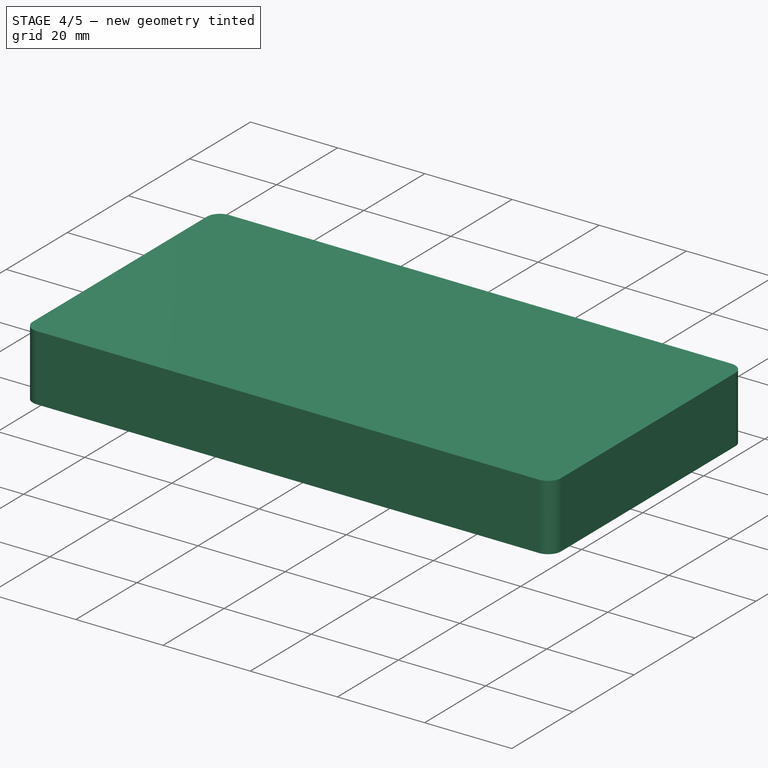
[diagram: stage 4 of 5 — iso view after this stage's code; geometry added in this stage tinted green]
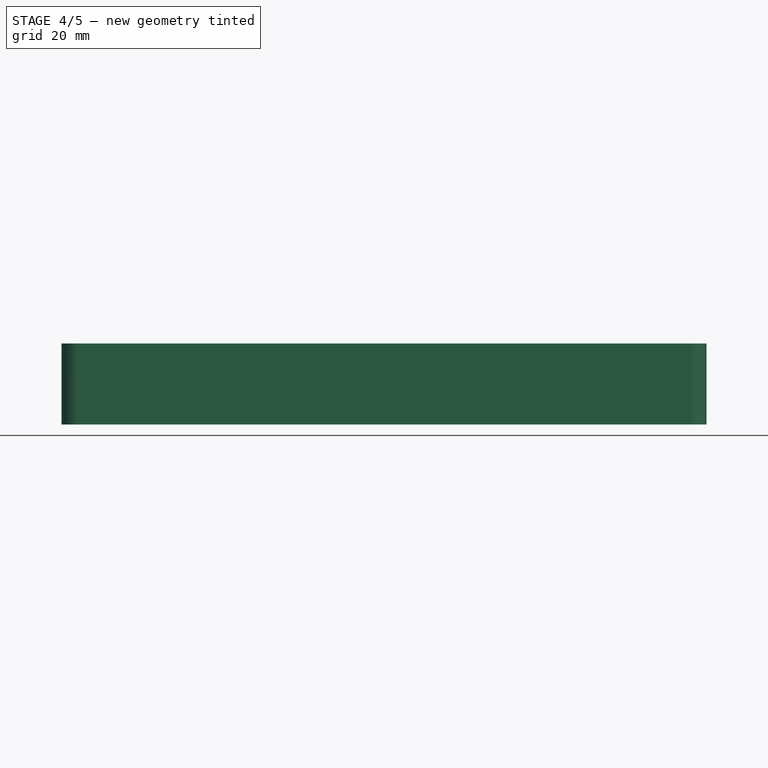
[diagram: stage 4 of 5 — front view after this stage's code; geometry added in this stage tinted green]
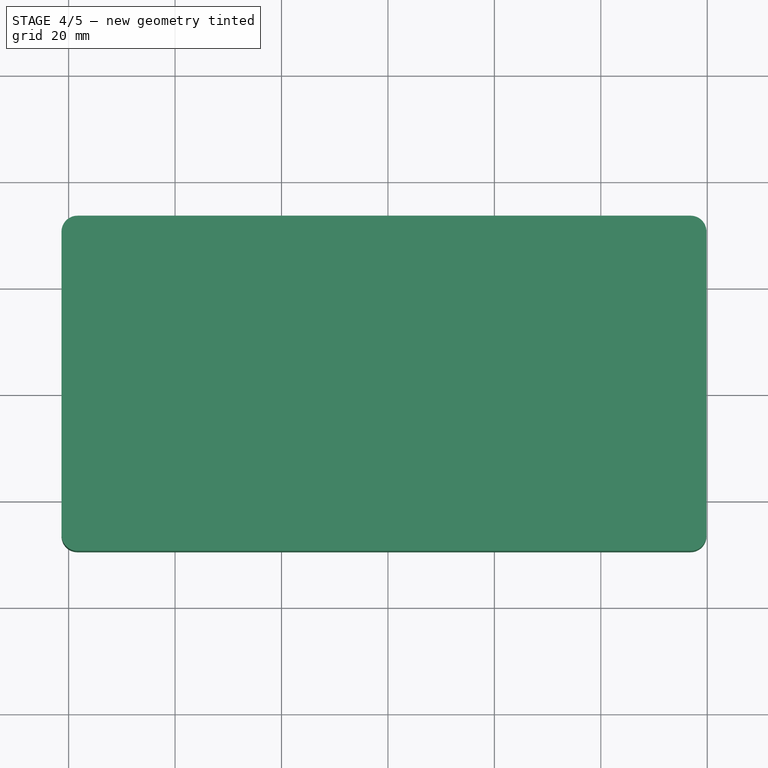
[diagram: stage 4 of 5 — top view after this stage's code; geometry added in this stage tinted green]
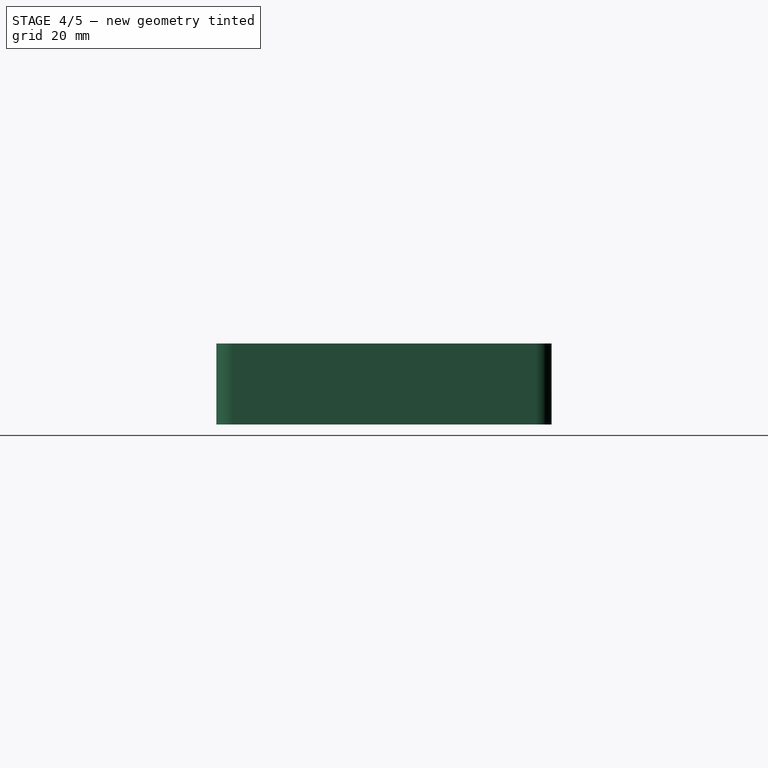
[diagram: stage 4 of 5 — right view after this stage's code; geometry added in this stage tinted green]
FEATURE [Sketcher::SketchObject] Sketch009
  ArcFitTolerance = 1e-06
  AttachmentSupport = -> [Pad006]
  ExternalGeometry = -> [Pad006,Binder001]
  FullyConstrained = true
  MakeInternals = false
  MapMode = 5
  Placement = pos=(0,0,3.2) rot=(0,0,1;0rad)
  sketch-geometry (17):
    g0: LineSegment StartX=-61.34 StartY=30.5 StartZ=0 EndX=-61.34 EndY=-26.5 EndZ=0
    g1: LineSegment StartX=-58.34 StartY=-29.5 StartZ=0 EndX=56.86 EndY=-29.5 EndZ=0
    g2: LineSegment StartX=59.86 StartY=-26.5 StartZ=0 EndX=59.86 EndY=30.5 EndZ=0
    g3: LineSegment StartX=56.86 StartY=33.5 StartZ=0 EndX=-58.34 EndY=33.5 EndZ=0
    g4: ArcOfCircle CenterX=-58.34 CenterY=30.5 CenterZ=0 NormalX=0 NormalY=0 NormalZ=1 AngleXU=0 Radius=3 StartAngle=1.5708 EndAngle=3.14159
    g5: ArcOfCircle CenterX=-58.34 CenterY=-26.5 CenterZ=0 NormalX=0 NormalY=0 NormalZ=1 AngleXU=0 Radius=3 StartAngle=3.14159 EndAngle=4.71239
    g6: ArcOfCircle CenterX=56.86 CenterY=-26.5 CenterZ=0 NormalX=0 NormalY=0 NormalZ=1 AngleXU=0 Radius=3 StartAngle=4.71239 EndAngle=6.28319
    g7: ArcOfCircle CenterX=56.86 CenterY=30.5 CenterZ=0 NormalX=0 NormalY=0 NormalZ=1 AngleXU=0 Radius=3 StartAngle=3e-16 EndAngle=1.5708
    g8: GeomPoint [constr] X=-61.34 Y=33.5 Z=0
    g9: GeomPoint [constr] X=59.86 Y=-29.5 Z=0
    g10: LineSegment StartX=-57.84 StartY=30 StartZ=0 EndX=-57.84 EndY=-26 EndZ=0
    g11: LineSegment StartX=-57.84 StartY=-26 StartZ=0 EndX=56.36 EndY=-26 EndZ=0
    g12: LineSegment StartX=56.36 StartY=-26 StartZ=0 EndX=56.36 EndY=30 EndZ=0
    g13: LineSegment StartX=56.36 StartY=30 StartZ=0 EndX=-57.84 EndY=30 EndZ=0
    g14: LineSegment [constr] StartX=-57.84 StartY=-26 StartZ=0 EndX=-57.84 EndY=-29.5 EndZ=0
    g15: LineSegment [constr] StartX=-57.84 StartY=-26 StartZ=0 EndX=-61.34 EndY=-26 EndZ=0
    g16: LineSegment [constr] StartX=56.36 StartY=-26 StartZ=0 EndX=59.86 EndY=-26 EndZ=0
  constraints (42):
    c: Tangent(g0,g4) = -1.5708
    c: Tangent(g0,g5) = -1.5708
    c: Tangent(g1,g5) = -1.5708
    c: Tangent(g1,g6) = -1.5708
    c: Tangent(g2,g6) = -1.5708
    c: Tangent(g2,g7) = -1.5708
    c: Tangent(g3,g7) = -1.5708
    c: Tangent(g3,g4) = -1.5708
    c: Vertical(g0)
    c: Vertical(g2)
    c: Horizontal(g1)
    c: Equal(g4,g5)
    c: Equal(g5,g6)
    c: Equal(g6,g7)
    c: PointOnObject(g8,g0)
    c: PointOnObject(g8,g3)
    c: PointOnObject(g9,g1)
    c: PointOnObject(g9,g2)
    c: Coincident(g10,g11)
    c: Coincident(g11,g12)
    c: Coincident(g12,g13)
    c: Coincident(g13,g10)
    c: Vertical(g10)
    c: Vertical(g12)
    c: Horizontal(g11)
    c: Horizontal(g13)
    c: PointOnObject(g-8,g13)
    c: PointOnObject(g-7,g11)
    c: Coincident(g-3,g3)
    c: Coincident(g0,g-4)
    c: Coincident(g-6,g2)
    c: Coincident(g14,g10)
    c: PointOnObject(g14,g1)
    c: Vertical(g14)
    c: Coincident(g15,g10)
    c: PointOnObject(g15,g0)
    c: Horizontal(g15)
    c: Coincident(g16,g11)
    c: PointOnObject(g16,g2)
    c: Horizontal(g16)
    c: Equal(g16,g15)
    c: Equal(g15,g14)
FEATURE [PartDesign::Pad] Pad007  label="Pad_outerWall"
  BaseFeature = -> Pad006
  Direction = (0,0,1)
  Length = 10
  Length2 = 10
  Profile = -> Sketch009
  ReferenceAxis = -> Sketch009 [N_Axis]
  Refine = true
  Suppressed = false
  Type = 0
FEATURE [Sketcher::SketchObject] Sketch010
  ArcFitTolerance = 1e-06
  AttachmentSupport = -> [Pad007]
  ExternalGeometry = -> [Pad007]
  FullyConstrained = true
  MakeInternals = false
  MapMode = 5
  Placement = pos=(0,0,13.2) rot=(0,0,1;0rad)
  sketch-geometry (10):
    g0: LineSegment StartX=-61.34 StartY=30.5 StartZ=0 EndX=-61.34 EndY=-26.5 EndZ=0
    g1: LineSegment StartX=-58.34 StartY=-29.5 StartZ=0 EndX=56.86 EndY=-29.5 EndZ=0
    g2: LineSegment StartX=59.86 StartY=-26.5 StartZ=0 EndX=59.86 EndY=30.5 EndZ=0
    g3: LineSegment StartX=56.86 StartY=33.5 StartZ=0 EndX=-58.34 EndY=33.5 EndZ=0
    g4: ArcOfCircle CenterX=-58.34 CenterY=30.5 CenterZ=0 NormalX=0 NormalY=0 NormalZ=1 AngleXU=0 Radius=3 StartAngle=1.5708 EndAngle=3.14159
    g5: ArcOfCircle CenterX=-58.34 CenterY=-26.5 CenterZ=0 NormalX=0 NormalY=0 NormalZ=1 AngleXU=0 Radius=3 StartAngle=3.14159 EndAngle=4.71239
    g6: ArcOfCircle CenterX=56.86 CenterY=-26.5 CenterZ=0 NormalX=0 NormalY=0 NormalZ=1 AngleXU=0 Radius=3 StartAngle=4.71239 EndAngle=6.28319
    g7: ArcOfCircle CenterX=56.86 CenterY=30.5 CenterZ=0 NormalX=0 NormalY=0 NormalZ=1 AngleXU=0 Radius=3 StartAngle=5e-16 EndAngle=1.5708
    g8: GeomPoint [constr] X=-61.34 Y=33.5 Z=0
    g9: GeomPoint [constr] X=59.86 Y=-29.5 Z=0
  constraints (21):
    c: Tangent(g0,g4) = -1.5708
    c: Tangent(g0,g5) = -1.5708
    c: Tangent(g1,g5) = -1.5708
    c: Tangent(g1,g6) = -1.5708
    c: Tangent(g2,g6) = -1.5708
    c: Tangent(g2,g7) = -1.5708
    c: Tangent(g3,g7) = -1.5708
    c: Tangent(g3,g4) = -1.5708
    c: Vertical(g0)
    c: Vertical(g2)
    c: Horizontal(g1)
    c: Equal(g4,g5)
    c: Equal(g5,g6)
    c: Equal(g6,g7)
    c: PointOnObject(g8,g0)
    c: PointOnObject(g8,g3)
    c: PointOnObject(g9,g1)
    c: PointOnObject(g9,g2)
    c: Coincident(g-3,g3)
    c: Coincident(g-4,g0)
    c: Coincident(g1,g-5)
FEATURE [PartDesign::Pad] Pad008
  BaseFeature = -> Pad007
  Direction = (0,0,1)
  Length = 2
  Length2 = 10
  Profile = -> Sketch010
  ReferenceAxis = -> Sketch010 [N_Axis]
  Refine = true
  Suppressed = false
  Type = 0
FEATURE [Sketcher::SketchObject] Sketch011
  ArcFitTolerance = 1e-06
  AttachmentSupport = -> [Pad008]
  ExternalGeometry = -> [Pad008,Binder001]
  FullyConstrained = true
  MakeInternals = false
  MapMode = 5
  Placement = pos=(-61.34,0,1.85195e-11) rot=(0.57735,-0.57735,-0.57735;2.0944rad)
  sketch-geometry (8):
    g0: LineSegment StartX=-2.9 StartY=0 StartZ=0 EndX=12.6 EndY=0 EndZ=0
    g1: LineSegment StartX=12.6 StartY=0 StartZ=0 EndX=12.6 EndY=4 EndZ=0
    g2: LineSegment StartX=11.85 StartY=4.75 StartZ=0 EndX=-2.15 EndY=4.75 EndZ=0
    g3: LineSegment StartX=-2.9 StartY=4 StartZ=0 EndX=-2.9 EndY=0 EndZ=0
    g4: ArcOfCircle CenterX=-2.15 CenterY=4 CenterZ=0 NormalX=0 NormalY=0 NormalZ=1 AngleXU=0 Radius=0.75 StartAngle=1.5708 EndAngle=3.14159
    g5: GeomPoint [constr] X=-2.9 Y=4.75 Z=0
    g6: ArcOfCircle CenterX=11.85 CenterY=4 CenterZ=0 NormalX=0 NormalY=0 NormalZ=1 AngleXU=0 Radius=0.75 StartAngle=0 EndAngle=1.5708
    g7: GeomPoint [constr] X=12.6 Y=4.75 Z=0
  constraints (20):
    c: Coincident(g0,g1)
    c: Coincident(g3,g0)
    c: Horizontal(g0)
    c: Horizontal(g2)
    c: Vertical(g1)
    c: Vertical(g3)
    c: PointOnObject(g0,g-1)
    c: PointOnObject(g5,g2)
    c: PointOnObject(g5,g3)
    c: Tangent(g2,g4) = -1.5708
    c: Tangent(g3,g4) = -1.5708
    c: PointOnObject(g7,g1)
    c: PointOnObject(g7,g2)
    c: Tangent(g1,g6) = -1.5708
    c: Tangent(g2,g6) = -1.5708
    c: Equal(g4,g6)
    c: Radius(g4) = 0.75
    c: DistanceX(g2,g2) = 14
    c: DistanceY(g0,g2) = 4.75
    c: DistanceX(g1,g-4) = 13.4
FEATURE [PartDesign::Pocket] Pocket002
  BaseFeature = -> Pad008
  Direction = (1,0,-3.02e-13)
  Length = 5
  Length2 = 5
  Profile = -> Sketch011
  ReferenceAxis = -> Sketch011 [N_Axis]
  Refine = true
  Suppressed = false
  Type = 0
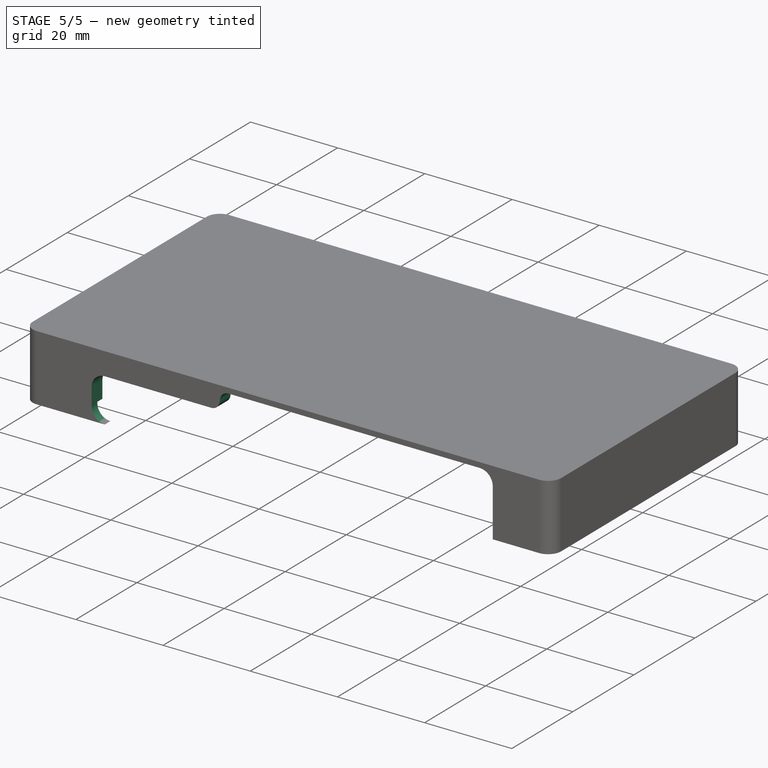
[diagram: stage 5 of 5 — iso view after this stage's code; geometry added in this stage tinted green]
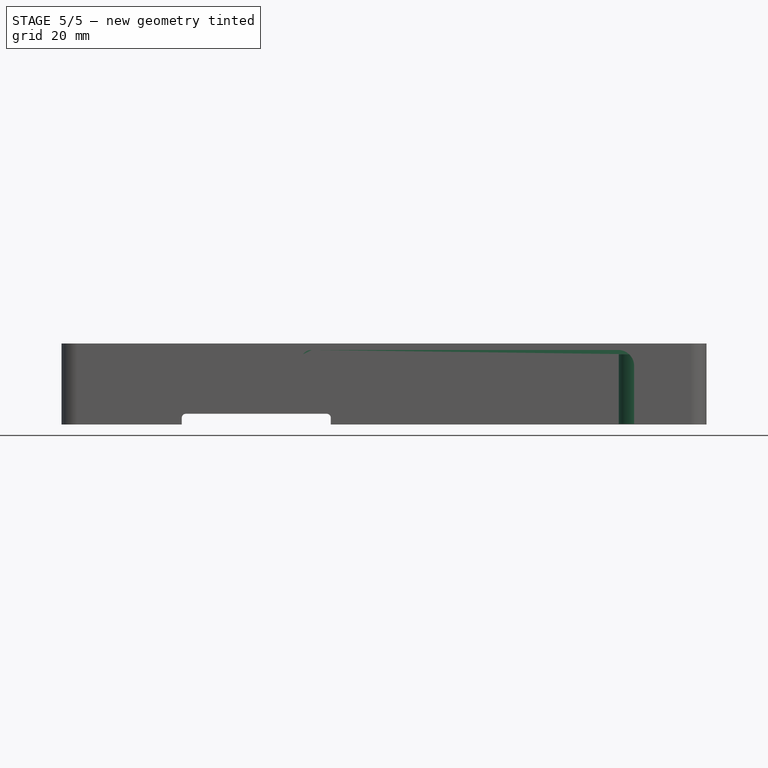
[diagram: stage 5 of 5 — front view after this stage's code; geometry added in this stage tinted green]
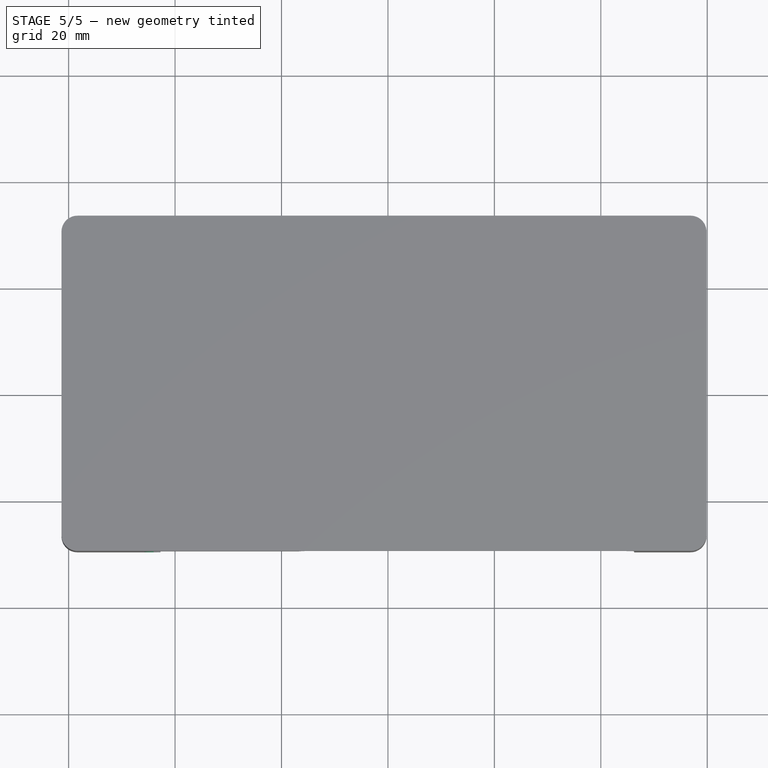
[diagram: stage 5 of 5 — top view after this stage's code; geometry added in this stage tinted green]
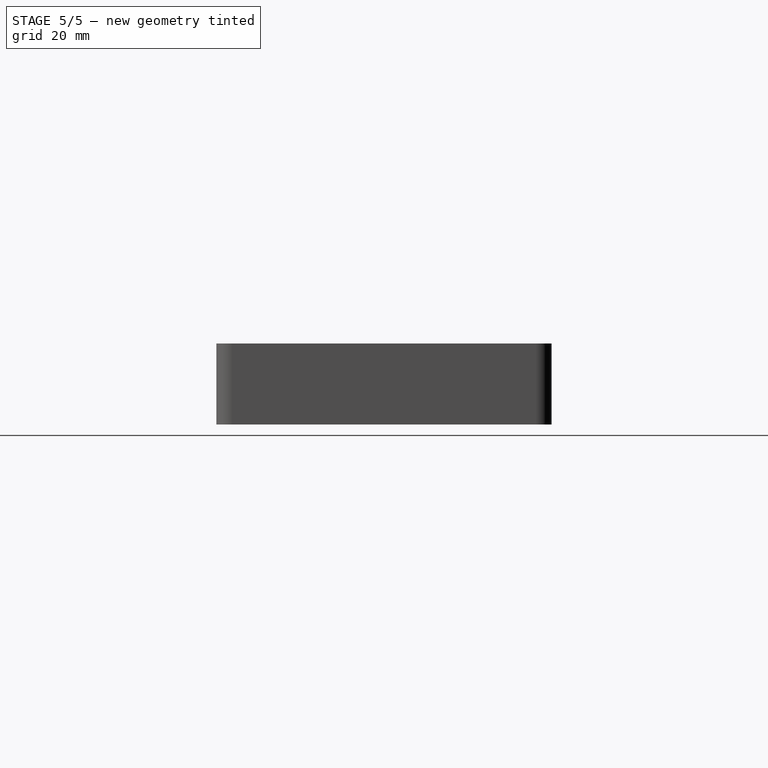
[diagram: stage 5 of 5 — right view after this stage's code; geometry added in this stage tinted green]
FEATURE [Sketcher::SketchObject] Sketch012
  ArcFitTolerance = 1e-06
  AttachmentSupport = -> [Pocket002]
  ExternalGeometry = -> [Pocket002]
  FullyConstrained = true
  MakeInternals = false
  MapMode = 5
  Placement = pos=(-2.66594e-11,33.5,-2.06628e-10) rot=(0,0.707107,0.707107;3.14159rad)
  sketch-geometry (8):
    g0: LineSegment StartX=10.74 StartY=0 StartZ=0 EndX=38.74 EndY=0 EndZ=0
    g1: LineSegment StartX=38.74 StartY=0 StartZ=0 EndX=38.74 EndY=1.25 EndZ=0
    g2: LineSegment StartX=37.99 StartY=2 StartZ=0 EndX=11.49 EndY=2 EndZ=0
    g3: LineSegment StartX=10.74 StartY=1.25 StartZ=0 EndX=10.74 EndY=0 EndZ=0
    g4: ArcOfCircle CenterX=11.49 CenterY=1.25 CenterZ=0 NormalX=0 NormalY=0 NormalZ=1 AngleXU=0 Radius=0.75 StartAngle=1.5708 EndAngle=3.14159
    g5: GeomPoint [constr] X=10.74 Y=2 Z=0
    g6: ArcOfCircle CenterX=37.99 CenterY=1.25 CenterZ=0 NormalX=0 NormalY=0 NormalZ=1 AngleXU=0 Radius=0.75 StartAngle=0 EndAngle=1.5708
    g7: GeomPoint [constr] X=38.74 Y=2 Z=0
  constraints (20):
    c: Coincident(g0,g1)
    c: Coincident(g3,g0)
    c: Horizontal(g0)
    c: Horizontal(g2)
    c: Vertical(g1)
    c: Vertical(g3)
    c: PointOnObject(g0,g-1)
    c: DistanceX(g5,g7) = 28
    c: DistanceX(g7,g-4) = 19
    c: DistanceY(g3,g5) = 2
    c: PointOnObject(g5,g2)
    c: PointOnObject(g5,g3)
    c: Tangent(g2,g4) = -1.5708
    c: Tangent(g3,g4) = -1.5708
    c: PointOnObject(g7,g1)
    c: PointOnObject(g7,g2)
    c: Tangent(g1,g6) = -1.5708
    c: Tangent(g2,g6) = -1.5708
    c: Equal(g6,g4)
    c: Radius(g4) = 0.75
FEATURE [PartDesign::Pocket] Pocket003
  BaseFeature = -> Pocket002
  Direction = (7.958e-13,-1,6.1682e-12)
  Length = 5
  Length2 = 5
  Profile = -> Sketch012
  ReferenceAxis = -> Sketch012 [N_Axis]
  Refine = true
  Suppressed = false
  Type = 0
FEATURE [PartDesign::SubShapeBinder] Binder002
  BindCopyOnChange = 0
  BindMode = 0
  ClaimChildren = false
  Context = -> Part001 [Body003.Binder002.]
  Fuse = false
  MakeFace = true
  OffsetFill = false
  OffsetIntersection = false
  OffsetJoinType = 0
  OffsetOpenResult = false
  PartialLoad = false
  Refine = true
  Relative = true
  Support = -> [Body002[Pad005.Face15]]
  _Version = 2
FEATURE [Sketcher::SketchObject] Sketch013
  ArcFitTolerance = 1e-06
  AttachmentSupport = -> [Pocket003]
  ExternalGeometry = -> [Binder002]
  FullyConstrained = false
  MakeInternals = false
  MapMode = 5
  Placement = pos=(-1e-13,-29.5,-1.089e-13) rot=(1,0,0;1.5708rad)
  sketch-geometry (16):
    g0: ArcOfCircle CenterX=-42.74 CenterY=3 CenterZ=0 NormalX=0 NormalY=0 NormalZ=1 AngleXU=0 Radius=3 StartAngle=3.14159 EndAngle=4.71239
    g1: ArcOfCircle CenterX=-14.34 CenterY=1.858e-13 CenterZ=0 NormalX=0 NormalY=0 NormalZ=1 AngleXU=0 Radius=2 StartAngle=3.14159 EndAngle=4.71239
    g2: ArcOfCircle CenterX=25.66 CenterY=1.858e-13 CenterZ=0 NormalX=0 NormalY=0 NormalZ=1 AngleXU=0 Radius=2 StartAngle=4.71239 EndAngle=6.28319
    g3: LineSegment StartX=27.66 StartY=1.853e-13 StartZ=0 EndX=46.26 EndY=1.853e-13 EndZ=0
    g4: LineSegment StartX=46.26 StartY=1.853e-13 StartZ=0 EndX=46.26 EndY=3 EndZ=0
    g5: LineSegment StartX=25.66 StartY=-2 StartZ=0 EndX=-14.34 EndY=-2 EndZ=0
    g6: LineSegment StartX=-16.34 StartY=1.86e-13 StartZ=0 EndX=-42.74 EndY=1.843e-13 EndZ=0
    g7: LineSegment StartX=-45.74 StartY=3 StartZ=0 EndX=-45.74 EndY=7 EndZ=0
    g8: LineSegment StartX=46.26 StartY=11 StartZ=0 EndX=46.26 EndY=3 EndZ=0
    g9: ArcOfCircle CenterX=-42.74 CenterY=7 CenterZ=0 NormalX=0 NormalY=0 NormalZ=1 AngleXU=0 Radius=3 StartAngle=1.5708 EndAngle=3.14159
    g10: ArcOfCircle CenterX=43.26 CenterY=11 CenterZ=0 NormalX=0 NormalY=0 NormalZ=1 AngleXU=0 Radius=3 StartAngle=0 EndAngle=1.5708
    g11: GeomPoint [constr] X=46.26 Y=8.97461 Z=0
    g12: LineSegment StartX=43.26 StartY=14 StartZ=0 EndX=-14.34 EndY=14 EndZ=0
    g13: ArcOfCircle CenterX=-14.34 CenterY=12 CenterZ=0 NormalX=0 NormalY=0 NormalZ=1 AngleXU=0 Radius=2 StartAngle=1.5708 EndAngle=3.14159
    g14: ArcOfCircle CenterX=-18.34 CenterY=12 CenterZ=0 NormalX=0 NormalY=0 NormalZ=1 AngleXU=0 Radius=2 StartAngle=4.71239 EndAngle=6.28319
    g15: LineSegment StartX=-42.74 StartY=10 StartZ=0 EndX=-18.34 EndY=10 EndZ=0
  constraints (36):
    c: Coincident(g0,g-3)
    c: Coincident(g0,g-3)
    c: Coincident(g1,g-4)
    c: Coincident(g1,g-4)
    c: Coincident(g2,g-6)
    c: Coincident(g2,g-6)
    c: Coincident(g3,g2)
    c: Coincident(g3,g-7)
    c: Horizontal(g3)
    c: Coincident(g4,g3)
    c: Coincident(g4,g-7)
    c: Tangent(g5,g2) = 1.5708
    c: Coincident(g6,g1)
    c: Coincident(g7,g0)
    c: Vertical(g7)
    c: Vertical(g8)
    c: Coincident(g8,g4)
    c: Tangent(g6,g0) = 1.5708
    c: Coincident(g5,g1)
    c: Tangent(g7,g9) = 1.5708
    c: PointOnObject(g11,g8)
    c: Tangent(g8,g10) = 1.5708
    c: Equal(g10,g9)
    c: Equal(g9,g0)
    c: Horizontal(g12)
    c: Horizontal(g15)
    c: Tangent(g14,g13) = 1.5708
    c: Tangent(g15,g14) = -1.5708
    c: Tangent(g13,g12) = -1.5708
    c: Tangent(g15,g9) = 1.5708
    c: Tangent(g12,g10) = -1.5708
    c: Horizontal(g14,g13)
    c: DistanceY(g0,g9) = 10
    c: Equal(g14,g13)
    c: Radius(g13) = 2
    c: Vertical(g1,g13)
FEATURE [PartDesign::Pocket] Pocket004
  BaseFeature = -> Pocket003
  Direction = (3.4e-15,1,3.6e-15)
  Length = 5
  Length2 = 5
  Profile = -> Sketch013
  ReferenceAxis = -> Sketch013 [N_Axis]
  Refine = true
  Suppressed = false
  Type = 2
FEATURE [PartDesign::SubShapeBinder] Binder003
  BindCopyOnChange = 0
  BindMode = 0
  ClaimChildren = false
  Context = -> Part001 [Body003.Binder003.]
  Fuse = false
  MakeFace = true
  OffsetFill = false
  OffsetIntersection = false
  OffsetJoinType = 0
  OffsetOpenResult = false
  PartialLoad = false
  Refine = true
  Relative = true
  Support = -> [Body002[Pad005.Face65,Pad005.Face68,Pad005.Face66,Pad005.Face67]]
  _Version = 2
FEATURE [Sketcher::SketchObject] Sketch014
  ArcFitTolerance = 1e-06
  AttachmentSupport = -> [Pocket004]
  ExternalGeometry = -> [Pocket004,Binder003]
  FullyConstrained = true
  MakeInternals = false
  MapMode = 5
  Placement = pos=(0,0,13.2) rot=(1,0,0;3.14159rad)
  sketch-geometry (28):
    g0: ArcOfCircle CenterX=-53.24 CenterY=-22.5 CenterZ=0 NormalX=0 NormalY=0 NormalZ=1 AngleXU=0 Radius=3.5 StartAngle=0 EndAngle=1.5708
    g1: LineSegment StartX=-57.84 StartY=-30 StartZ=0 EndX=-57.84 EndY=-19 EndZ=0
    g2: LineSegment StartX=-57.84 StartY=-19 StartZ=0 EndX=-53.24 EndY=-19 EndZ=0
    g3: LineSegment StartX=-57.84 StartY=-30 StartZ=0 EndX=-49.74 EndY=-30 EndZ=0
    g4: LineSegment StartX=-49.74 StartY=-30 StartZ=0 EndX=-49.74 EndY=-22.5 EndZ=0
    g5: LineSegment StartX=-57.84 StartY=26 StartZ=0 EndX=-57.84 EndY=18 EndZ=0
    g6: LineSegment StartX=-57.84 StartY=18 StartZ=0 EndX=-53.24 EndY=18 EndZ=0
    g7: LineSegment StartX=-49.74 StartY=21.5 StartZ=0 EndX=-49.74 EndY=26 EndZ=0
    g8: LineSegment StartX=-49.74 StartY=26 StartZ=0 EndX=-57.84 EndY=26 EndZ=0
    g9: ArcOfCircle CenterX=-53.24 CenterY=21.5 CenterZ=0 NormalX=0 NormalY=0 NormalZ=1 AngleXU=0 Radius=3.5 StartAngle=4.71239 EndAngle=6.28319
    g10: GeomPoint [constr] X=-49.74 Y=18 Z=0
    g11: LineSegment StartX=56.36 StartY=26 StartZ=0 EndX=46.86 EndY=26 EndZ=0
    g12: LineSegment StartX=56.36 StartY=18 StartZ=0 EndX=56.36 EndY=26 EndZ=0
    g13: ArcOfCircle CenterX=46.86 CenterY=21.5 CenterZ=0 NormalX=0 NormalY=0 NormalZ=1 AngleXU=0 Radius=3.5 StartAngle=1.5708 EndAngle=4.71239
    g14: LineSegment StartX=46.86 StartY=18 StartZ=0 EndX=56.36 EndY=18 EndZ=0
    g15: LineSegment StartX=46.86 StartY=25 StartZ=0 EndX=46.86 EndY=26 EndZ=0
    g16: Circle CenterX=-53.24 CenterY=21.5 CenterZ=0 NormalX=0 NormalY=0 NormalZ=1 AngleXU=0 Radius=1.5
    g17: Circle CenterX=46.86 CenterY=-22.5 CenterZ=0 NormalX=0 NormalY=0 NormalZ=1 AngleXU=0 Radius=1.5
    g18: Circle CenterX=51.86 CenterY=-23.4 CenterZ=0 NormalX=0 NormalY=0 NormalZ=1 AngleXU=0 Radius=1.5
    g19: LineSegment StartX=56.36 StartY=-30 StartZ=0 EndX=56.36 EndY=-23.4 EndZ=0
    g20: LineSegment StartX=56.36 StartY=-23.4 StartZ=0 EndX=55.36 EndY=-23.4 EndZ=0
    g21: LineSegment StartX=46.86 StartY=-26 StartZ=0 EndX=46.86 EndY=-30 EndZ=0
    g22: LineSegment StartX=46.86 StartY=-30 StartZ=0 EndX=56.36 EndY=-30 EndZ=0
    g23: ArcOfCircle CenterX=46.86 CenterY=-22.5 CenterZ=0 NormalX=0 NormalY=0 NormalZ=1 AngleXU=0 Radius=3.5 StartAngle=0.580558 EndAngle=4.71239
    g24: ArcOfCircle CenterX=51.86 CenterY=-23.4 CenterZ=0 NormalX=0 NormalY=0 NormalZ=1 AngleXU=0 Radius=3.5 StartAngle=0 EndAngle=2.20485
    g25: Circle CenterX=-53.24 CenterY=-22.5 CenterZ=0 NormalX=0 NormalY=0 NormalZ=1 AngleXU=0 Radius=1.5
    g26: Circle CenterX=46.86 CenterY=21.5 CenterZ=0 NormalX=0 NormalY=0 NormalZ=1 AngleXU=0 Radius=1.5
    g27: Circle CenterX=51.86 CenterY=21.5 CenterZ=0 NormalX=0 NormalY=0 NormalZ=1 AngleXU=0 Radius=1.5
  constraints (68):
    c: Coincident(g0,g-7)
    c: Radius(g0) = 3.5
    c: Coincident(g1,g-4)
    c: Vertical(g1)
    c: Horizontal(g2)
    c: Coincident(g3,g1)
    c: Horizontal(g3)
    c: Vertical(g4)
    c: Coincident(g3,g4)
    c: Tangent(g4,g0) = -1.5708
    c: Tangent(g2,g0) = 1.5708
    c: Coincident(g1,g2)
    c: Coincident(g5,g6)
    c: Coincident(g7,g8)
    c: Coincident(g8,g5)
    c: Vertical(g5)
    c: Vertical(g7)
    c: Horizontal(g6)
    c: Horizontal(g8)
    c: Coincident(g5,g-3)
    c: PointOnObject(g10,g6)
    c: PointOnObject(g10,g7)
    c: Tangent(g6,g9) = -1.5708
    c: Tangent(g7,g9) = -1.5708
    c: Coincident(g9,g-8)
    c: Equal(g9,g0)
    c: Coincident(g12,g11)
    c: Horizontal(g11)
    c: Vertical(g12)
    c: Coincident(g11,g-6)
    c: Tangent(g13,g14) = -1.5708
    c: Coincident(g13,g-9)
    c: Equal(g13,g9)
    c: Coincident(g15,g13)
    c: Coincident(g15,g11)
    c: Vertical(g15)
    c: Coincident(g14,g12)
    c: Horizontal(g14)
    c: Vertical(g13,g13)
    c: Coincident(g16,g9)
    c: Coincident(g17,g-11)
    c: Coincident(g18,g-12)
    c: Coincident(g19,g20)
    c: Coincident(g21,g22)
    c: Coincident(g22,g19)
    c: Vertical(g19)
    c: Vertical(g21)
    c: Horizontal(g20)
    c: Horizontal(g22)
    c: Coincident(g19,g-5)
    c: Coincident(g23,g17)
    c: Coincident(g24,g18)
    c: Coincident(g24,g23)
    c: Equal(g23,g24)
    c: Equal(g24,g13)
    c: Coincident(g21,g23)
    c: Coincident(g20,g24)
    c: Vertical(g21,g17)
    c: Horizontal(g20,g18)
    c: Coincident(g25,g0)
    c: Coincident(g26,g13)
    c: Coincident(g27,g-10)
    c: Equal(g17,g18)
    c: Equal(g18,g26)
    c: Equal(g26,g27)
    c: Equal(g27,g16)
    c: Equal(g16,g25)
    c: Diameter(g25) = 3
FEATURE [PartDesign::Pad] Pad009
  BaseFeature = -> Pocket004
  Direction = (0,0,-1)
  Length = 10
  Length2 = 10
  Profile = -> Sketch014
  ReferenceAxis = -> Sketch014 [N_Axis]
  Refine = true
  Suppressed = false
  Type = 0
  UpToShape = -> [Binder003]
FEATURE [Sketcher::SketchObject] Sketch015
  ArcFitTolerance = 1e-06
  AttachmentSupport = -> [Pad009]
  ExternalGeometry = -> [Binder003,Pad009]
  FullyConstrained = true
  MakeInternals = false
  MapMode = 5
  Placement = pos=(0,0,3.2) rot=(1,0,0;3.14159rad)
  sketch-geometry (14):
    g0: Circle CenterX=-53.24 CenterY=21.5 CenterZ=0 NormalX=0 NormalY=0 NormalZ=1 AngleXU=0 Radius=1.7
    g1: Circle CenterX=-53.24 CenterY=-22.5 CenterZ=0 NormalX=0 NormalY=0 NormalZ=1 AngleXU=0 Radius=1.7
    g2: Circle CenterX=51.86 CenterY=-23.4 CenterZ=0 NormalX=0 NormalY=0 NormalZ=1 AngleXU=0 Radius=1.7
    g3: Circle CenterX=46.86 CenterY=-22.5 CenterZ=0 NormalX=0 NormalY=0 NormalZ=1 AngleXU=0 Radius=1.7
    g4: Circle CenterX=46.86 CenterY=21.5 CenterZ=0 NormalX=0 NormalY=0 NormalZ=1 AngleXU=0 Radius=1.7
    g5: Circle CenterX=51.86 CenterY=21.5 CenterZ=0 NormalX=0 NormalY=0 NormalZ=1 AngleXU=0 Radius=1.7
    g6: Circle CenterX=-53.24 CenterY=-22.5 CenterZ=0 NormalX=0 NormalY=0 NormalZ=1 AngleXU=0 Radius=3.5
    g7: Circle CenterX=-53.24 CenterY=21.5 CenterZ=0 NormalX=0 NormalY=0 NormalZ=1 AngleXU=0 Radius=3.5
    g8: ArcOfCircle CenterX=46.86 CenterY=21.5 CenterZ=0 NormalX=0 NormalY=0 NormalZ=1 AngleXU=0 Radius=3.5 StartAngle=1.5708 EndAngle=4.71239
    g9: ArcOfCircle CenterX=51.86 CenterY=21.5 CenterZ=0 NormalX=0 NormalY=0 NormalZ=1 AngleXU=0 Radius=3.5 StartAngle=4.71239 EndAngle=7.85398
    g10: LineSegment StartX=46.86 StartY=25 StartZ=0 EndX=51.86 EndY=25 EndZ=0
    g11: LineSegment StartX=46.86 StartY=18 StartZ=0 EndX=51.86 EndY=18 EndZ=0
    g12: ArcOfCircle CenterX=46.86 CenterY=-22.5 CenterZ=0 NormalX=0 NormalY=0 NormalZ=1 AngleXU=0 Radius=3.5 StartAngle=0.580558 EndAngle=5.34644
    g13: ArcOfCircle CenterX=51.86 CenterY=-23.4 CenterZ=0 NormalX=0 NormalY=0 NormalZ=1 AngleXU=0 Radius=3.5 StartAngle=3.72215 EndAngle=8.48803
  constraints (28):
    c: Coincident(g0,g-6)
    c: Equal(g0,g-6)
    c: Coincident(g1,g-4)
    c: Coincident(g2,g-13)
    c: Coincident(g3,g-14)
    c: Coincident(g4,g-9)
    c: Equal(g4,g-9)
    c: Coincident(g5,g-10)
    c: Equal(g5,g-10)
    c: Coincident(g6,g1)
    c: PointOnObject(g-16,g6)
    c: Coincident(g7,g0)
    c: PointOnObject(g-15,g7)
    c: Tangent(g8,g10) = 1.5708
    c: Tangent(g8,g11) = -1.5708
    c: Tangent(g9,g10) = 1.5708
    c: Tangent(g9,g11) = -1.5708
    c: Coincident(g12,g3)
    c: Coincident(g12,g-18)
    c: Coincident(g13,g2)
    c: Coincident(g13,g12)
    c: Coincident(g13,g12)
    c: Equal(g3,g-11)
    c: Equal(g2,g-12)
    c: Equal(g1,g-3)
    c: Coincident(g8,g4)
    c: Coincident(g9,g5)
    c: Coincident(g8,g-17)
FEATURE [PartDesign::Pad] Pad010
  BaseFeature = -> Pad009
  Direction = (0,0,-1)
  Length = 3.1
  Length2 = 10
  Profile = -> Sketch015
  ReferenceAxis = -> Sketch015 [N_Axis]
  Refine = true
  Suppressed = false
  Type = 0
FEATURE [PartDesign::Body] Body003  label="TopLid"
  AllowCompound = false
  Group = -> [Binder001,Sketch008,Pad006,Sketch009,Pad007,Sketch010,Pad008,Sketch011,Pocket002,Sketch012,Pocket003,Binder002,Sketch013,Pocket004,Binder003,Sketch014,Pad009,Sketch015,Pad010]
  Origin = -> Origin010
  Tip = -> Pad010
FEATURE [App::Part] Part001  label="Enclosure"
  Group = -> [Body002,Body003]
  Origin = -> Origin008
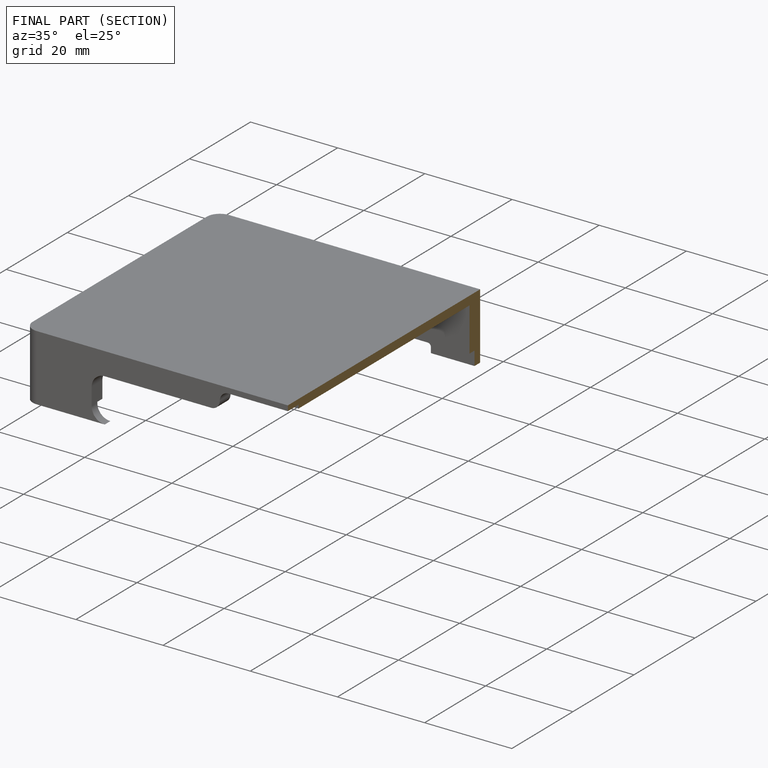
[diagram: finished part — half-section view (interior)]
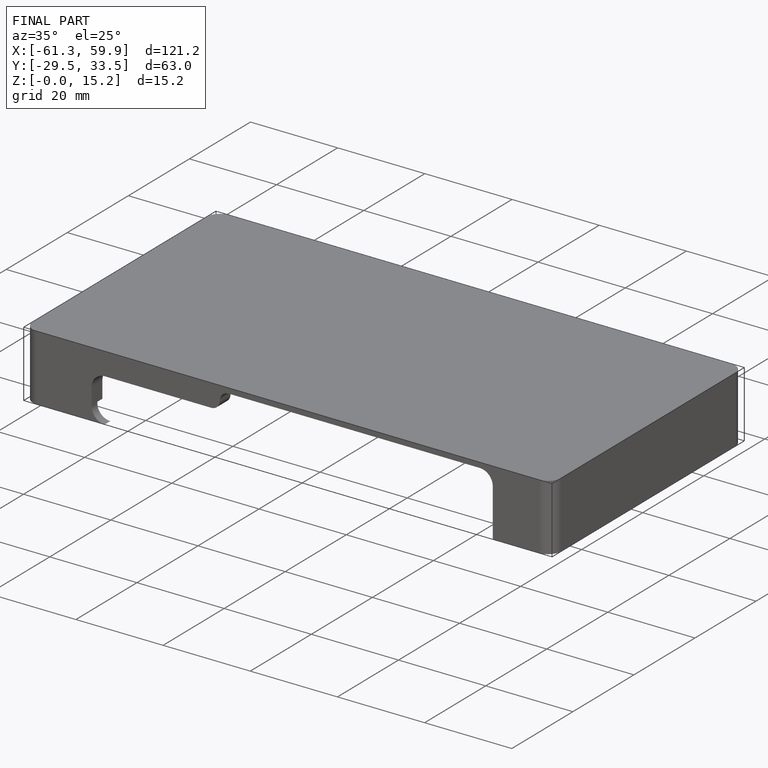
[diagram: finished part — iso view with bounding-box wireframe]
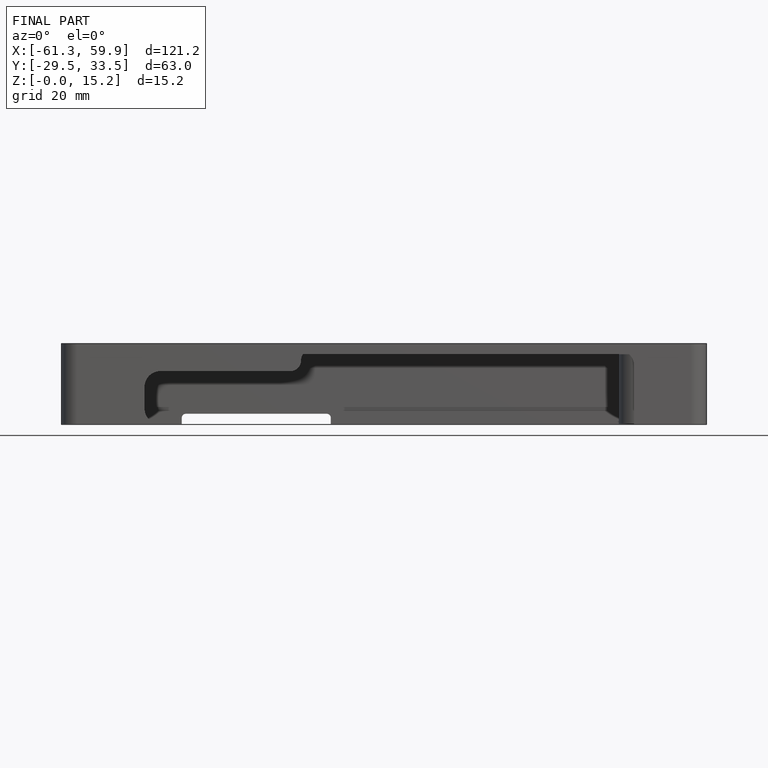
[diagram: finished part — front view with bounding-box wireframe]
